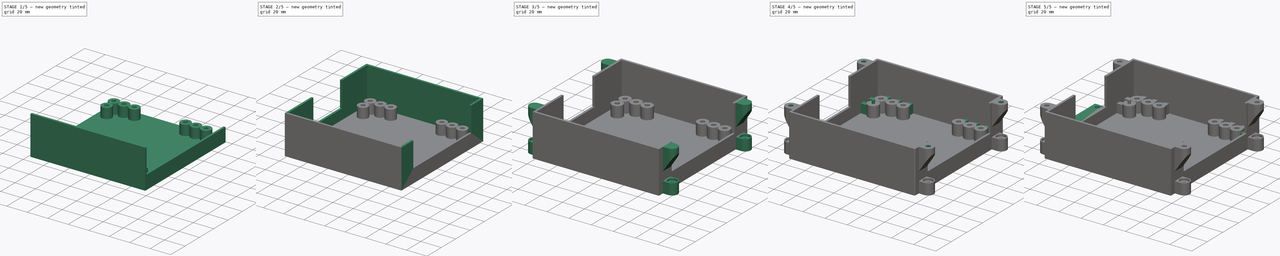
[diagram: build sequence overview — one tinted view per stage of 5, left to right]
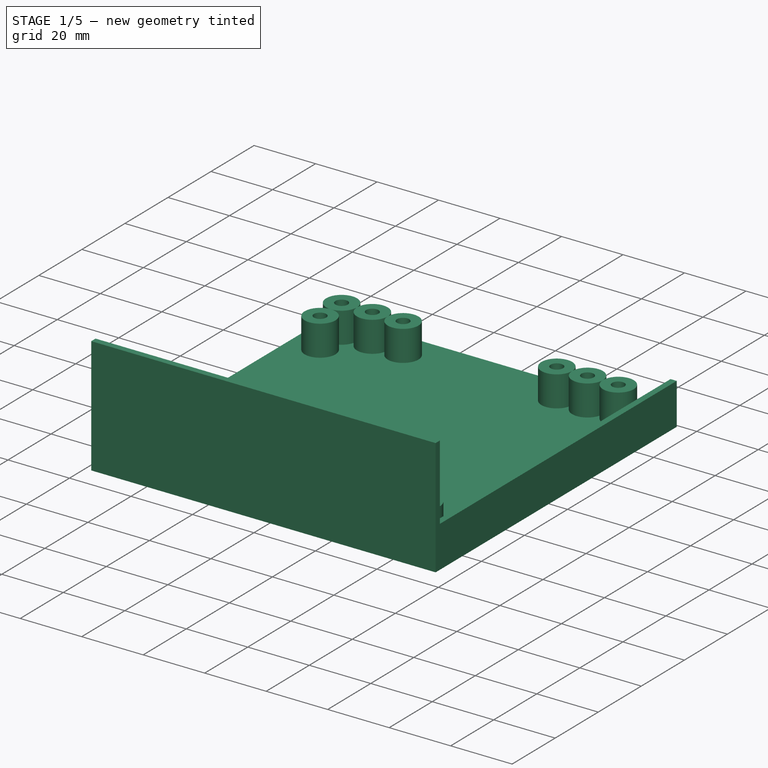
[diagram: stage 1 of 5 — iso view after this stage's code; geometry added in this stage tinted green]
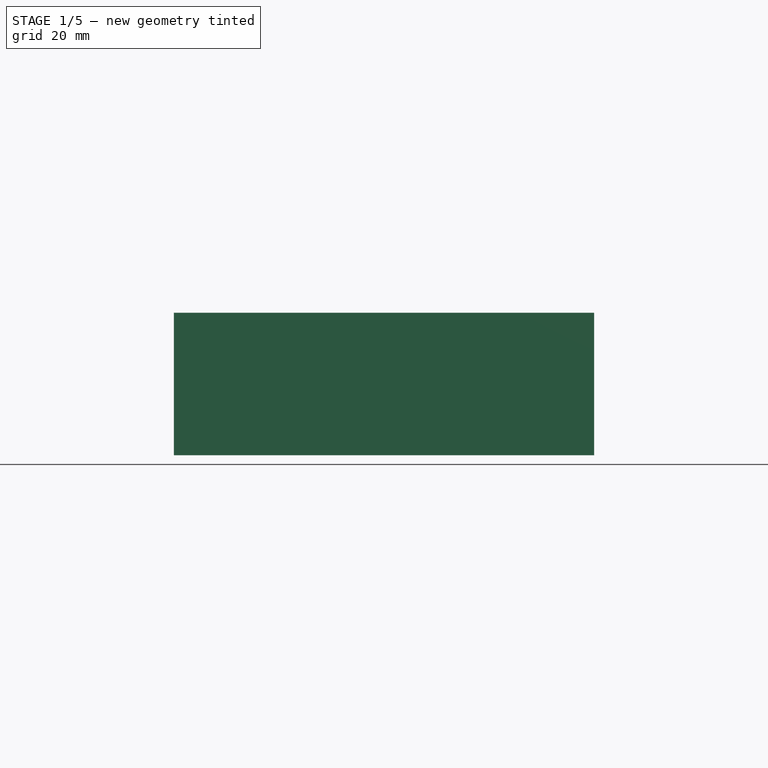
[diagram: stage 1 of 5 — front view after this stage's code; geometry added in this stage tinted green]
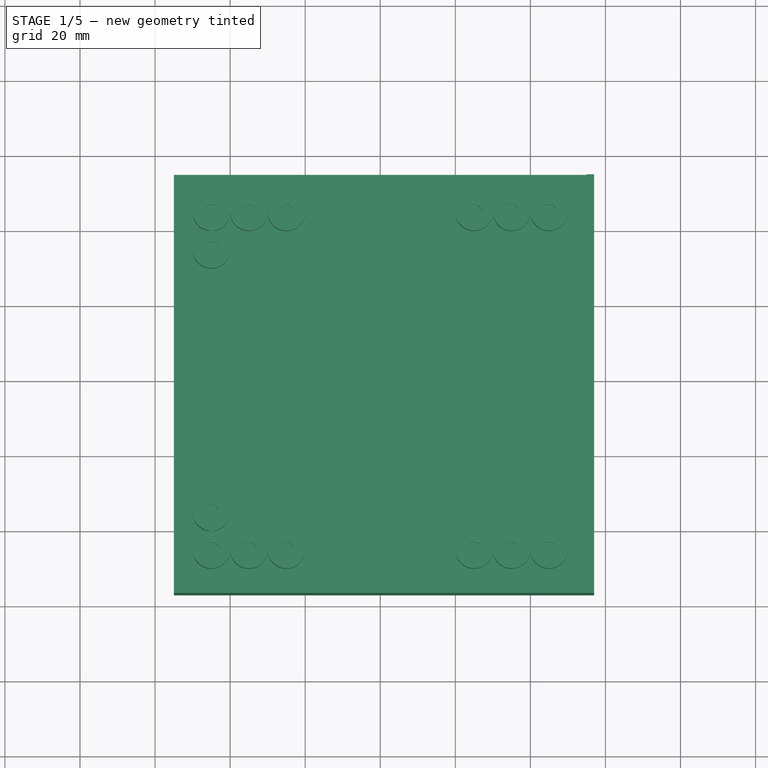
[diagram: stage 1 of 5 — top view after this stage's code; geometry added in this stage tinted green]
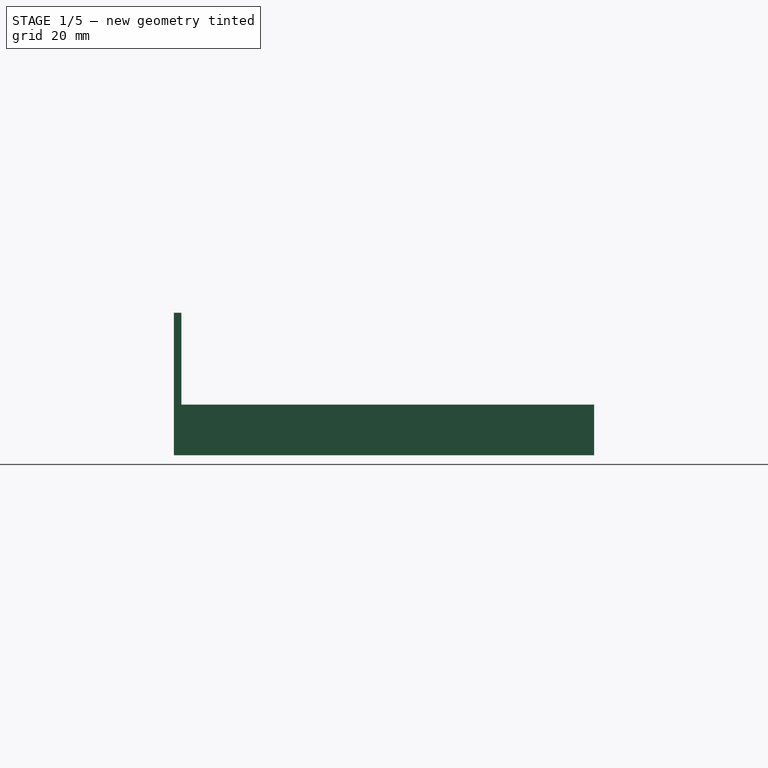
[diagram: stage 1 of 5 — right view after this stage's code; geometry added in this stage tinted green]
FCSTD DOCUMENT  (FreeCAD 1.0R39104 (Git))
Label: Case_1.1
License: All rights reserved
LicenseURL: https://en.wikipedia.org/wiki/All_rights_reserved
objects: Sketcher::SketchObject×24, PartDesign::Pad×17, PartDesign::Hole×4, PartDesign::Pocket×3, PartDesign::Fillet×2, PartDesign::Chamfer×1, PartDesign::Body×1
note: 130 computed .brp shape members not serialized (recipe doc carries the construction recipe); baked Part::Feature solids carry a one-line shape summary decoded from their .brp

FEATURE [Sketcher::SketchObject] Sketch
  ArcFitTolerance = 1e-06
  AttachmentSupport = -> [XY_Plane]
  FullyConstrained = true
  MakeInternals = false
  MapMode = 5
  sketch-geometry (5):
    g0: LineSegment StartX=-55 StartY=55 StartZ=0 EndX=-55 EndY=-55 EndZ=0
    g1: LineSegment StartX=-55 StartY=-55 StartZ=0 EndX=55 EndY=-55 EndZ=0
    g2: LineSegment StartX=55 StartY=-55 StartZ=0 EndX=55 EndY=55 EndZ=0
    g3: LineSegment StartX=55 StartY=55 StartZ=0 EndX=-55 EndY=55 EndZ=0
    g4: GeomPoint [constr] X=0 Y=0 Z=0
  constraints (12):
    c: Coincident(g0,g1)
    c: Coincident(g1,g2)
    c: Coincident(g2,g3)
    c: Coincident(g3,g0)
    c: Vertical(g0)
    c: Vertical(g2)
    c: Horizontal(g1)
    c: Horizontal(g3)
    c: Symmetric(g2,g0,g4)
    c: Coincident(g4,g-1)
    c: DistanceX(g3,g3) = 110
    c: DistanceY(g0,g0) = 110
FEATURE [PartDesign::Pad] Pad
  Direction = (0,0,1)
  Length = 3
  Length2 = 10
  Profile = -> Sketch
  ReferenceAxis = -> Sketch [N_Axis]
  Refine = true
  Suppressed = false
  Type = 0
FEATURE [Sketcher::SketchObject] Sketch001
  ArcFitTolerance = 1e-06
  AttachmentSupport = -> [Pad]
  FullyConstrained = true
  MakeInternals = false
  MapMode = 5
  Placement = pos=(0,0,3) rot=(0,0,1;0rad)
  sketch-geometry (17):
    g0: Circle CenterX=-45 CenterY=45 CenterZ=0 NormalX=0 NormalY=0 NormalZ=1 AngleXU=0 Radius=5
    g1: Circle CenterX=45 CenterY=45 CenterZ=0 NormalX=0 NormalY=0 NormalZ=1 AngleXU=0 Radius=5
    g2: Circle CenterX=45 CenterY=-45 CenterZ=0 NormalX=0 NormalY=0 NormalZ=1 AngleXU=0 Radius=5
    g3: Circle CenterX=-45 CenterY=-45 CenterZ=0 NormalX=0 NormalY=0 NormalZ=1 AngleXU=0 Radius=5
    g4: LineSegment StartX=-45 StartY=45 StartZ=0 EndX=45 EndY=45 EndZ=0
    g5: Circle CenterX=-35 CenterY=45 CenterZ=0 NormalX=0 NormalY=0 NormalZ=1 AngleXU=0 Radius=5
    g6: Circle CenterX=-25 CenterY=45 CenterZ=0 NormalX=0 NormalY=0 NormalZ=1 AngleXU=0 Radius=5
    g7: Circle CenterX=-45 CenterY=35 CenterZ=0 NormalX=0 NormalY=0 NormalZ=1 AngleXU=0 Radius=5
    g8: Circle CenterX=35 CenterY=45 CenterZ=0 NormalX=0 NormalY=0 NormalZ=1 AngleXU=0 Radius=5
    g9: Circle CenterX=25 CenterY=45 CenterZ=0 NormalX=0 NormalY=0 NormalZ=1 AngleXU=0 Radius=5
    g10: LineSegment StartX=-45 StartY=-45 StartZ=0 EndX=45 EndY=-45 EndZ=0
    g11: LineSegment StartX=-45 StartY=45 StartZ=0 EndX=-45 EndY=-45 EndZ=0
    g12: Circle CenterX=-45 CenterY=-35 CenterZ=0 NormalX=0 NormalY=0 NormalZ=1 AngleXU=0 Radius=5
    g13: Circle CenterX=-35 CenterY=-45 CenterZ=0 NormalX=0 NormalY=0 NormalZ=1 AngleXU=0 Radius=5
    g14: Circle CenterX=-25 CenterY=-45 CenterZ=0 NormalX=0 NormalY=0 NormalZ=1 AngleXU=0 Radius=5
    g15: Circle CenterX=35 CenterY=-45 CenterZ=0 NormalX=0 NormalY=0 NormalZ=1 AngleXU=0 Radius=5
    g16: Circle CenterX=25 CenterY=-45 CenterZ=0 NormalX=0 NormalY=0 NormalZ=1 AngleXU=0 Radius=5
  constraints (48):
    c: Distance(g0,g-2) = 45
    c: Distance(g0,g-1) = 45
    c: Diameter(g0) = 10
    c: Diameter(g1) = 10
    c: Diameter(g3) = 10
    c: Diameter(g2) = 10
    c: Distance(g3,g-2) = 45
    c: Distance(g3,g-1) = 45
    c: Distance(g2,g-1) = 45
    c: Distance(g2,g-2) = 45
    c: Distance(g1,g-1) = 45
    c: Distance(g1,g-2) = 45
    c: Coincident(g4,g0)
    c: Coincident(g4,g1)
    c: PointOnObject(g5,g4)
    c: Diameter(g5) = 10
    c: DistanceX(g0,g5) = 10
    c: Diameter(g6) = 10
    c: PointOnObject(g6,g4)
    c: DistanceX(g5,g6) = 10
    c: Distance(g7,g-2) = 45
    c: Diameter(g7) = 10
    c: DistanceY(g7,g0) = 10
    c: Diameter(g8) = 10
    c: PointOnObject(g8,g4)
    c: Diameter(g9) = 10
    c: PointOnObject(g9,g4)
    c: DistanceX(g8,g1) = 10
    c: DistanceX(g9,g8) = 10
    c: Coincident(g10,g3)
    c: Coincident(g10,g2)
    c: Coincident(g11,g0)
    c: Coincident(g11,g3)
    c: PointOnObject(g12,g11)
    c: Diameter(g12) = 10
    c: Distance(g12,g10) = 10
    c: PointOnObject(g13,g10)
    c: PointOnObject(g14,g10)
    c: Diameter(g13) = 10
    c: Diameter(g14) = 10
    c: DistanceX(g3,g13) = 10
    c: DistanceX(g13,g14) = 10
    c: PointOnObject(g15,g10)
    c: Diameter(g15) = 10
    c: PointOnObject(g16,g10)
    c: Diameter(g16) = 10
    c: DistanceX(g15,g2) = 10
    c: DistanceX(g16,g15) = 10
FEATURE [PartDesign::Pad] Pad001
  BaseFeature = -> Pad
  Direction = (0,0,1)
  Length = 10
  Length2 = 10
  Profile = -> Sketch001 [Edge4,Edge13,Edge14,Edge15,Edge17,Edge16,Edge3,Edge2,Edge11,Edge12,Edge9,Edge8,Edge1,Vertex11,Edge10]
  ReferenceAxis = -> Sketch001 [N_Axis]
  Refine = true
  Suppressed = false
  Type = 0
FEATURE [Sketcher::SketchObject] Sketch002
  ArcFitTolerance = 1e-06
  AttachmentSupport = -> [Pad001]
  ExternalGeometry = -> [Pad001]
  FullyConstrained = true
  MakeInternals = false
  MapMode = 5
  Placement = pos=(0,0,13) rot=(0,0,1;0rad)
  sketch-geometry (28):
    g0: GeomPoint X=45 Y=-45 Z=0
    g1: GeomPoint X=35 Y=-45 Z=0
    g2: GeomPoint X=25 Y=-45 Z=0
    g3: GeomPoint X=-25 Y=-45 Z=0
    g4: GeomPoint X=-35 Y=-45 Z=0
    g5: GeomPoint X=-45 Y=-45 Z=0
    g6: GeomPoint X=-45 Y=-35 Z=0
    g7: GeomPoint X=-45 Y=35 Z=0
    g8: GeomPoint X=-45 Y=45 Z=0
    g9: GeomPoint X=-35 Y=45 Z=0
    g10: GeomPoint X=-25 Y=45 Z=0
    g11: GeomPoint X=25 Y=45 Z=0
    g12: GeomPoint X=35 Y=45 Z=0
    g13: GeomPoint X=45 Y=45 Z=0
    g14: Circle CenterX=-45 CenterY=45 CenterZ=0 NormalX=0 NormalY=0 NormalZ=1 AngleXU=0 Radius=2
    g15: Circle CenterX=-35 CenterY=45 CenterZ=0 NormalX=0 NormalY=0 NormalZ=1 AngleXU=0 Radius=2
    g16: Circle CenterX=-25 CenterY=45 CenterZ=0 NormalX=0 NormalY=0 NormalZ=1 AngleXU=0 Radius=2
    g17: Circle CenterX=-45 CenterY=35 CenterZ=0 NormalX=0 NormalY=0 NormalZ=1 AngleXU=0 Radius=2
    g18: Circle CenterX=25 CenterY=45 CenterZ=0 NormalX=0 NormalY=0 NormalZ=1 AngleXU=0 Radius=2
    g19: Circle CenterX=35 CenterY=45 CenterZ=0 NormalX=0 NormalY=0 NormalZ=1 AngleXU=0 Radius=2
    g20: Circle CenterX=45 CenterY=45 CenterZ=0 NormalX=0 NormalY=0 NormalZ=1 AngleXU=0 Radius=2
    g21: Circle CenterX=45 CenterY=-45 CenterZ=0 NormalX=0 NormalY=0 NormalZ=1 AngleXU=0 Radius=2
    g22: Circle CenterX=35 CenterY=-45 CenterZ=0 NormalX=0 NormalY=0 NormalZ=1 AngleXU=0 Radius=2
    g23: Circle CenterX=25 CenterY=-45 CenterZ=0 NormalX=0 NormalY=0 NormalZ=1 AngleXU=0 Radius=2
    g24: Circle CenterX=-45 CenterY=-35 CenterZ=0 NormalX=0 NormalY=0 NormalZ=1 AngleXU=0 Radius=2
    g25: Circle CenterX=-45 CenterY=-45 CenterZ=0 NormalX=0 NormalY=0 NormalZ=1 AngleXU=0 Radius=2
    g26: Circle CenterX=-35 CenterY=-45 CenterZ=0 NormalX=0 NormalY=0 NormalZ=1 AngleXU=0 Radius=2
    g27: Circle CenterX=-25 CenterY=-45 CenterZ=0 NormalX=0 NormalY=0 NormalZ=1 AngleXU=0 Radius=2
  constraints (42):
    c: Coincident(g0,g-19)
    c: Coincident(g1,g-18)
    c: Coincident(g2,g-17)
    c: Coincident(g3,g-21)
    c: Coincident(g4,g-23)
    c: Coincident(g5,g-25)
    c: Coincident(g6,g-27)
    c: Coincident(g7,g-9)
    c: Coincident(g8,g-3)
    c: Coincident(g9,g-7)
    c: Coincident(g10,g-6)
    c: Coincident(g11,g-10)
    c: Coincident(g12,g-13)
    c: Coincident(g13,g-14)
    c: Coincident(g14,g8)
    c: Diameter(g14) = 4
    c: Coincident(g15,g9)
    c: Diameter(g15) = 4
    c: Coincident(g16,g10)
    c: Diameter(g16) = 4
    c: Coincident(g17,g7)
    c: Diameter(g17) = 4
    c: Coincident(g18,g11)
    c: Diameter(g18) = 4
    c: Coincident(g19,g12)
    c: Diameter(g19) = 4
    c: Coincident(g20,g13)
    c: Diameter(g20) = 4
    c: Coincident(g21,g0)
    c: Coincident(g22,g1)
    c: Coincident(g23,g2)
    c: Diameter(g23) = 4
    c: Diameter(g22) = 4
    c: Diameter(g21) = 4
    c: Coincident(g24,g6)
    c: Coincident(g25,g5)
    c: Coincident(g26,g4)
    c: Coincident(g27,g3)
    c: Diameter(g27) = 4
    c: Diameter(g26) = 4
    c: Diameter(g25) = 4
    c: Diameter(g24) = 4
FEATURE [PartDesign::Pocket] Pocket
  BaseFeature = -> Pad001
  Direction = (0,0,-1)
  Length = 4.1
  Length2 = 5
  Profile = -> Sketch002
  ReferenceAxis = -> Sketch002 [N_Axis]
  Refine = true
  Suppressed = false
  Type = 0
FEATURE [Sketcher::SketchObject] Sketch003
  ArcFitTolerance = 1e-06
  AttachmentSupport = -> [Pocket]
  ExternalGeometry = -> [Pocket]
  FullyConstrained = false
  MakeInternals = false
  MapMode = 5
  Placement = pos=(0,0,0) rot=(1,0,0;3.14159rad)
  sketch-geometry (4):
    g0: LineSegment StartX=55 StartY=-55 StartZ=0 EndX=57 EndY=-55 EndZ=0
    g1: LineSegment StartX=57 StartY=-55 StartZ=0 EndX=57 EndY=55 EndZ=0
    g2: LineSegment StartX=55 StartY=55 StartZ=0 EndX=55 EndY=-55 EndZ=0
    g3: LineSegment StartX=55 StartY=55 StartZ=0 EndX=57 EndY=55 EndZ=0
  constraints (10):
    c: DistanceX(g-4,g1) = 2
    c: Coincident(g0,g1)
    c: Coincident(g2,g0)
    c: Horizontal(g0)
    c: Vertical(g1)
    c: Vertical(g2)
    c: Coincident(g0,g-5)
    c: Coincident(g3,g2)
    c: Coincident(g3,g1)
    c: Horizontal(g3)
FEATURE [PartDesign::Pad] Pad002
  BaseFeature = -> Pocket
  Direction = (0,0,-1)
  Length = 13.5
  Length2 = 10
  Profile = -> Sketch003
  ReferenceAxis = -> Sketch003 [N_Axis]
  Refine = true
  Reversed = true
  Suppressed = false
  Type = 0
FEATURE [Sketcher::SketchObject] Sketch004
  ArcFitTolerance = 1e-06
  AttachmentSupport = -> [Pad002]
  ExternalGeometry = -> [Pad002]
  FullyConstrained = true
  MakeInternals = false
  MapMode = 5
  Placement = pos=(0,0,0) rot=(1,0,0;3.14159rad)
  sketch-geometry (4):
    g0: LineSegment StartX=-55 StartY=55 StartZ=0 EndX=57 EndY=55 EndZ=0
    g1: LineSegment StartX=57 StartY=55 StartZ=0 EndX=57 EndY=57 EndZ=0
    g2: LineSegment StartX=57 StartY=57 StartZ=0 EndX=-55 EndY=57 EndZ=0
    g3: LineSegment StartX=-55 StartY=57 StartZ=0 EndX=-55 EndY=55 EndZ=0
  constraints (11):
    c: Coincident(g0,g1)
    c: Coincident(g1,g2)
    c: Coincident(g2,g3)
    c: Coincident(g3,g0)
    c: Horizontal(g0)
    c: Horizontal(g2)
    c: Vertical(g1)
    c: Vertical(g3)
    c: Coincident(g0,g-3)
    c: DistanceX(g2,g2) = 112
    c: DistanceY(g3,g3) = 2
FEATURE [PartDesign::Pad] Pad003
  BaseFeature = -> Pad002
  Direction = (0,0,-1)
  Length = 38
  Length2 = 10
  Profile = -> Sketch004
  ReferenceAxis = -> Sketch004 [N_Axis]
  Refine = true
  Reversed = true
  Suppressed = false
  Type = 0
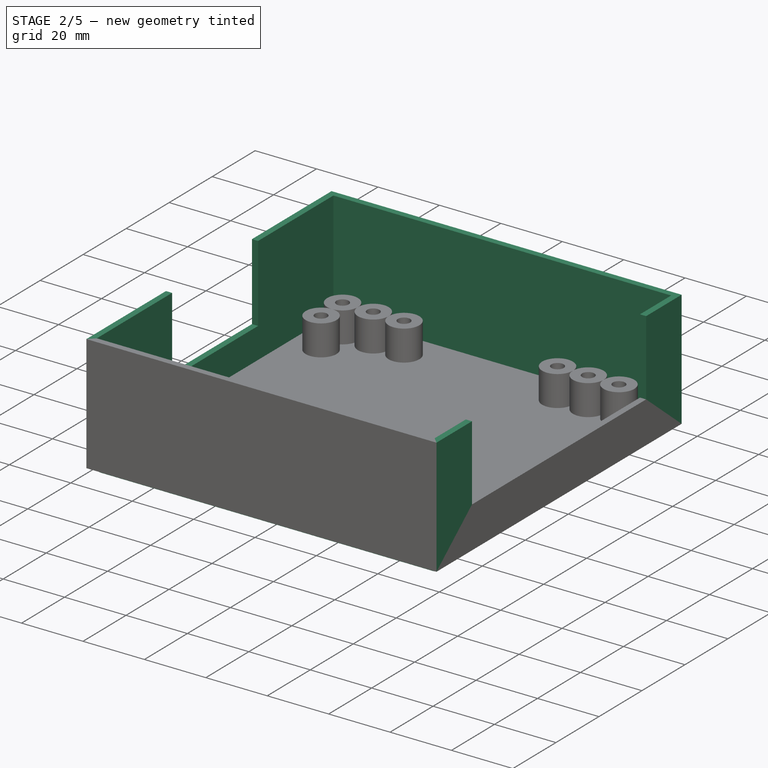
[diagram: stage 2 of 5 — iso view after this stage's code; geometry added in this stage tinted green]
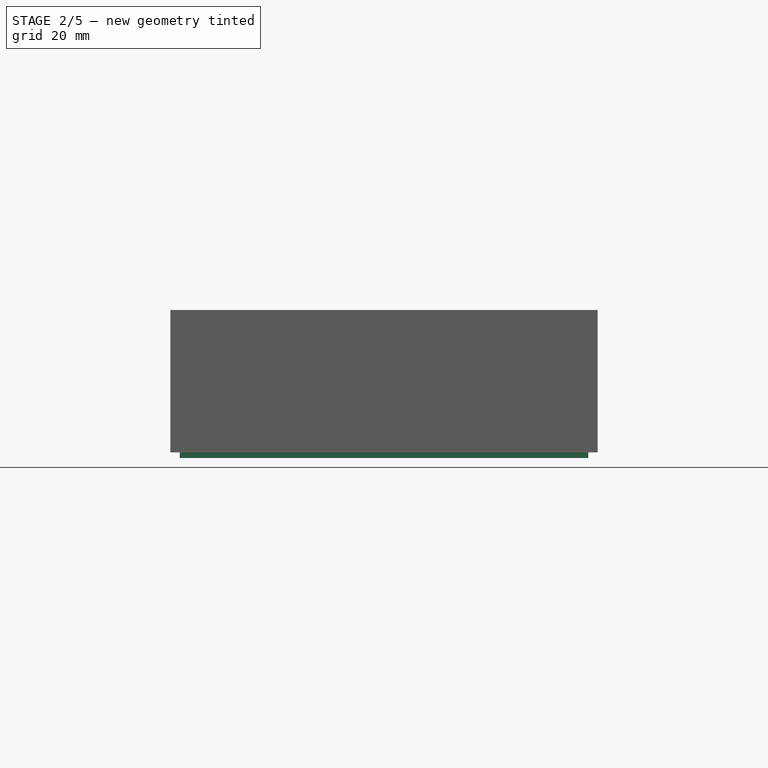
[diagram: stage 2 of 5 — front view after this stage's code; geometry added in this stage tinted green]
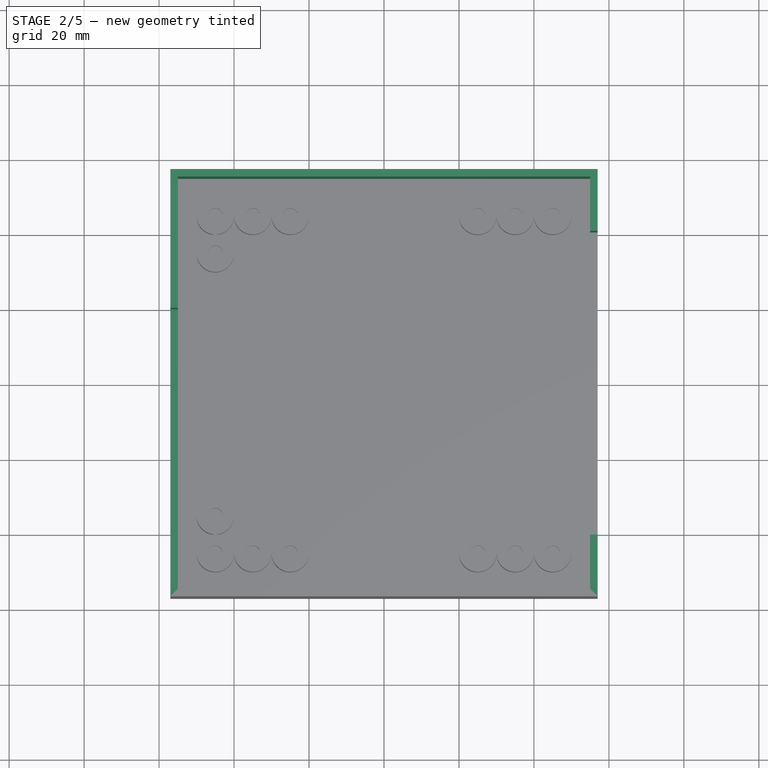
[diagram: stage 2 of 5 — top view after this stage's code; geometry added in this stage tinted green]
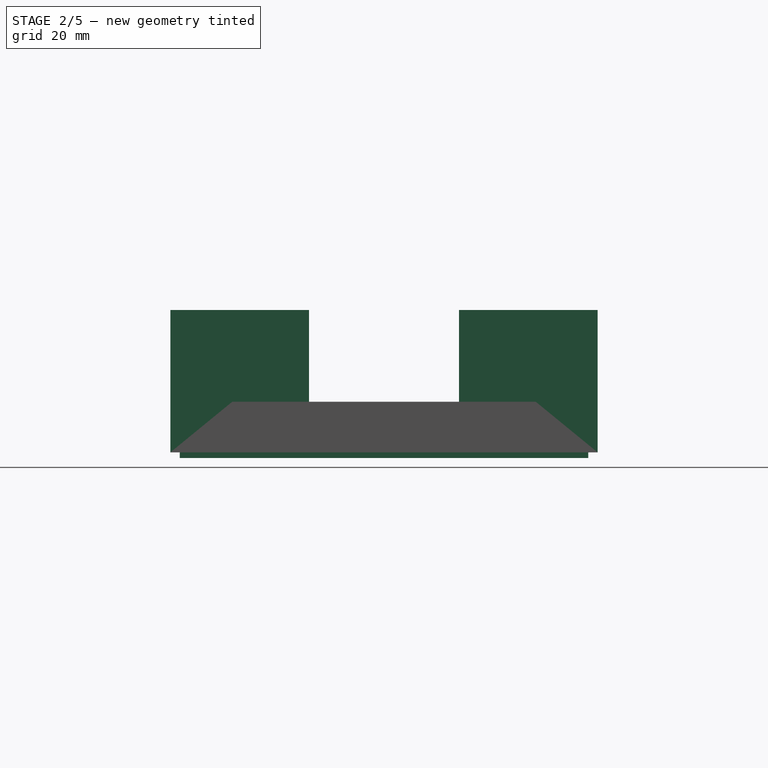
[diagram: stage 2 of 5 — right view after this stage's code; geometry added in this stage tinted green]
FEATURE [Sketcher::SketchObject] Sketch005
  ArcFitTolerance = 1e-06
  AttachmentSupport = -> [Pad003]
  ExternalGeometry = -> [Pad003]
  FullyConstrained = true
  MakeInternals = false
  MapMode = 5
  Placement = pos=(0,0,0) rot=(1,0,0;3.14159rad)
  sketch-geometry (4):
    g0: LineSegment StartX=57 StartY=-55 StartZ=0 EndX=-55 EndY=-55 EndZ=0
    g1: LineSegment StartX=-55 StartY=-55 StartZ=0 EndX=-55 EndY=-57 EndZ=0
    g2: LineSegment StartX=-55 StartY=-57 StartZ=0 EndX=57 EndY=-57 EndZ=0
    g3: LineSegment StartX=57 StartY=-57 StartZ=0 EndX=57 EndY=-55 EndZ=0
  constraints (11):
    c: Coincident(g0,g1)
    c: Coincident(g1,g2)
    c: Coincident(g2,g3)
    c: Coincident(g3,g0)
    c: Horizontal(g0)
    c: Horizontal(g2)
    c: Vertical(g1)
    c: Vertical(g3)
    c: Coincident(g0,g-5)
    c: DistanceX(g2,g2) = 112
    c: DistanceY(g1,g1) = 2
FEATURE [PartDesign::Pad] Pad004
  BaseFeature = -> Pad003
  Direction = (0,0,-1)
  Length = 38
  Length2 = 10
  Profile = -> Sketch005
  ReferenceAxis = -> Sketch005 [N_Axis]
  Refine = true
  Reversed = true
  Suppressed = false
  Type = 0
FEATURE [Sketcher::SketchObject] Sketch006
  ArcFitTolerance = 1e-06
  AttachmentSupport = -> [Pad004]
  ExternalGeometry = -> [Pad004]
  FullyConstrained = true
  MakeInternals = false
  MapMode = 5
  Placement = pos=(0,0,0) rot=(1,0,0;3.14159rad)
  sketch-geometry (5):
    g0: LineSegment StartX=-57 StartY=-57 StartZ=0 EndX=-55 EndY=-57 EndZ=0
    g1: LineSegment StartX=-55 StartY=-57 StartZ=0 EndX=-55 EndY=57 EndZ=0
    g2: LineSegment StartX=-55 StartY=57 StartZ=0 EndX=-57 EndY=57 EndZ=0
    g3: LineSegment StartX=-57 StartY=57 StartZ=0 EndX=-57 EndY=-57 EndZ=0
    g4: GeomPoint [constr] X=-56 Y=0 Z=0
  constraints (12):
    c: Coincident(g0,g1)
    c: Coincident(g1,g2)
    c: Coincident(g2,g3)
    c: Coincident(g3,g0)
    c: Horizontal(g0)
    c: Horizontal(g2)
    c: Vertical(g1)
    c: Vertical(g3)
    c: Symmetric(g2,g0,g4)
    c: PointOnObject(g4,g-1)
    c: Coincident(g1,g-3)
    c: DistanceX(g2,g2) = 2
FEATURE [PartDesign::Pad] Pad005
  BaseFeature = -> Pad004
  Direction = (0,0,-1)
  Length = 38
  Length2 = 10
  Profile = -> Sketch006
  ReferenceAxis = -> Sketch006 [N_Axis]
  Refine = true
  Reversed = true
  Suppressed = false
  Type = 0
FEATURE [Sketcher::SketchObject] Sketch007
  ArcFitTolerance = 1e-06
  AttachmentSupport = -> [Pad005]
  ExternalGeometry = -> [Pad005]
  FullyConstrained = true
  MakeInternals = false
  MapMode = 5
  Placement = pos=(0,0,38) rot=(0,0,1;0rad)
  sketch-geometry (5):
    g0: LineSegment StartX=-55 StartY=20 StartZ=0 EndX=-57 EndY=20 EndZ=0
    g1: LineSegment StartX=-57 StartY=20 StartZ=0 EndX=-57 EndY=-20 EndZ=0
    g2: LineSegment StartX=-57 StartY=-20 StartZ=0 EndX=-55 EndY=-20 EndZ=0
    g3: LineSegment StartX=-55 StartY=-20 StartZ=0 EndX=-55 EndY=20 EndZ=0
    g4: GeomPoint [constr] X=-56 Y=-1e-16 Z=0
  constraints (13):
    c: Coincident(g0,g1)
    c: Coincident(g1,g2)
    c: Coincident(g2,g3)
    c: Coincident(g3,g0)
    c: Horizontal(g0)
    c: Horizontal(g2)
    c: Vertical(g1)
    c: Vertical(g3)
    c: Symmetric(g2,g0,g4)
    c: PointOnObject(g4,g-1)
    c: Distance(g4,g-3) = 1
    c: DistanceX(g2,g2) = 2
    c: DistanceY(g1,g1) = 40
FEATURE [PartDesign::Pocket] Pocket001
  BaseFeature = -> Pad005
  Direction = (0,0,-1)
  Length = 0
  Length2 = 5
  Profile = -> Sketch007
  ReferenceAxis = -> Sketch007 [N_Axis]
  Refine = true
  Suppressed = false
  Type = 3
  UpToFace = -> Pad005 [Face34]
FEATURE [Sketcher::SketchObject] Sketch008
  ArcFitTolerance = 1e-06
  AttachmentSupport = -> [Pocket001]
  ExternalGeometry = -> [Pocket001]
  FullyConstrained = true
  MakeInternals = false
  MapMode = 5
  Placement = pos=(0,0,13.5) rot=(0,0,1;0rad)
  sketch-geometry (8):
    g0: LineSegment StartX=57 StartY=-55 StartZ=0 EndX=57 EndY=-40.5 EndZ=0
    g1: LineSegment StartX=57 StartY=-40.5 StartZ=0 EndX=55 EndY=-40.5 EndZ=0
    g2: LineSegment StartX=55 StartY=-40.5 StartZ=0 EndX=55 EndY=-55 EndZ=0
    g3: LineSegment StartX=55 StartY=-55 StartZ=0 EndX=57 EndY=-55 EndZ=0
    g4: LineSegment StartX=57 StartY=55 StartZ=0 EndX=55 EndY=55 EndZ=0
    g5: LineSegment StartX=55 StartY=55 StartZ=0 EndX=55 EndY=40.5 EndZ=0
    g6: LineSegment StartX=55 StartY=40.5 StartZ=0 EndX=57 EndY=40.5 EndZ=0
    g7: LineSegment StartX=57 StartY=40.5 StartZ=0 EndX=57 EndY=55 EndZ=0
  constraints (22):
    c: Coincident(g0,g1)
    c: Coincident(g1,g2)
    c: Coincident(g2,g3)
    c: Coincident(g3,g0)
    c: Vertical(g0)
    c: Vertical(g2)
    c: Horizontal(g1)
    c: Horizontal(g3)
    c: Coincident(g0,g-3)
    c: PointOnObject(g1,g-4)
    c: Coincident(g4,g5)
    c: Coincident(g5,g6)
    c: Coincident(g6,g7)
    c: Coincident(g7,g4)
    c: Horizontal(g4)
    c: Horizontal(g6)
    c: Vertical(g5)
    c: Vertical(g7)
    c: Coincident(g4,g-3)
    c: PointOnObject(g5,g-4)
    c: Distance(g1,g6) = 81
    c: Equal(g7,g0)
FEATURE [PartDesign::Pad] Pad006
  BaseFeature = -> Pocket001
  Direction = (0,0,1)
  Length = 10
  Length2 = 10
  Profile = -> Sketch008
  ReferenceAxis = -> Sketch008 [N_Axis]
  Refine = true
  Suppressed = false
  Type = 3
  UpToFace = -> Pocket001 [Face4]
FEATURE [Sketcher::SketchObject] Sketch012
  ArcFitTolerance = 1e-06
  AttachmentSupport = -> [Pad006]
  ExternalGeometry = -> [Pad006]
  FullyConstrained = true
  MakeInternals = false
  MapMode = 5
  Placement = pos=(0,0,0) rot=(1,0,0;3.14159rad)
  sketch-geometry (5):
    g0: LineSegment StartX=-54.5 StartY=54.5 StartZ=0 EndX=-54.5 EndY=-54.5 EndZ=0
    g1: LineSegment StartX=-54.5 StartY=-54.5 StartZ=0 EndX=54.5 EndY=-54.5 EndZ=0
    g2: LineSegment StartX=54.5 StartY=-54.5 StartZ=0 EndX=54.5 EndY=54.5 EndZ=0
    g3: LineSegment StartX=54.5 StartY=54.5 StartZ=0 EndX=-54.5 EndY=54.5 EndZ=0
    g4: GeomPoint [constr] X=0 Y=0 Z=0
  constraints (13):
    c: Coincident(g0,g1)
    c: Coincident(g1,g2)
    c: Coincident(g2,g3)
    c: Coincident(g3,g0)
    c: Vertical(g0)
    c: Vertical(g2)
    c: Horizontal(g1)
    c: Horizontal(g3)
    c: Symmetric(g2,g0,g4)
    c: Coincident(g4,g-1)
    c: DistanceX(g-6,g-6) = 110
    c: DistanceX(g3,g3) = 109
    c: DistanceY(g2,g2) = 109
FEATURE [PartDesign::Pad] Pad007
  BaseFeature = -> Pad006
  Direction = (0,0,-1)
  Length = 1.5
  Length2 = 10
  Profile = -> Sketch012 [Edge3,Edge4,Edge2,Edge1]
  ReferenceAxis = -> Sketch012 [N_Axis]
  Refine = true
  Suppressed = false
  Type = 0
FEATURE [Sketcher::SketchObject] Sketch013
  ArcFitTolerance = 1e-06
  AttachmentSupport = -> [Pad007]
  ExternalGeometry = -> [Pad007]
  FullyConstrained = false
  MakeInternals = false
  MapMode = 5
  Placement = pos=(0,0,0) rot=(1,0,0;3.14159rad)
  sketch-geometry (16):
    g0: ArcOfCircle CenterX=62 CenterY=47 CenterZ=0 NormalX=0 NormalY=0 NormalZ=1 AngleXU=0 Radius=5 StartAngle=4.71239 EndAngle=7.85398
    g1: LineSegment StartX=62 StartY=42 StartZ=0 EndX=57 EndY=42 EndZ=0
    g2: LineSegment StartX=62 StartY=52 StartZ=0 EndX=57 EndY=52 EndZ=0
    g3: LineSegment StartX=57 StartY=42 StartZ=0 EndX=57 EndY=52 EndZ=0
    g4: ArcOfCircle CenterX=62 CenterY=-47 CenterZ=0 NormalX=0 NormalY=0 NormalZ=1 AngleXU=0 Radius=5 StartAngle=4.71239 EndAngle=7.85398
    g5: LineSegment StartX=62 StartY=-42 StartZ=0 EndX=57 EndY=-42 EndZ=0
    g6: LineSegment StartX=62 StartY=-52 StartZ=0 EndX=57 EndY=-52 EndZ=0
    g7: LineSegment StartX=57 StartY=-42 StartZ=0 EndX=57 EndY=-52 EndZ=0
    g8: ArcOfCircle CenterX=-62 CenterY=47 CenterZ=0 NormalX=0 NormalY=0 NormalZ=1 AngleXU=0 Radius=5 StartAngle=1.5708 EndAngle=4.71239
    g9: LineSegment StartX=-62 StartY=42 StartZ=0 EndX=-57 EndY=42 EndZ=0
    g10: LineSegment StartX=-62 StartY=52 StartZ=0 EndX=-57 EndY=52 EndZ=0
    g11: LineSegment StartX=-57 StartY=42 StartZ=0 EndX=-57 EndY=52 EndZ=0
    g12: ArcOfCircle CenterX=-62 CenterY=-47 CenterZ=0 NormalX=0 NormalY=0 NormalZ=1 AngleXU=0 Radius=5 StartAngle=1.5708 EndAngle=4.71239
    g13: LineSegment StartX=-62 StartY=-42 StartZ=0 EndX=-57 EndY=-42 EndZ=0
    g14: LineSegment StartX=-62 StartY=-52 StartZ=0 EndX=-57 EndY=-52 EndZ=0
    g15: LineSegment StartX=-57 StartY=-42 StartZ=0 EndX=-57 EndY=-52 EndZ=0
  constraints (37):
    c: Diameter(g0) = 10
    c: Horizontal(g1)
    c: Horizontal(g2)
    c: Equal(g1,g2)
    c: Coincident(g3,g1)
    c: PointOnObject(g3,g2)
    c: Vertical(g3)
    c: Coincident(g0,g1)
    c: Tangent(g0,g2) = -1.5708
    c: DistanceY(g0,g-4) = 10
    c: Diameter(g4) = 10
    c: Horizontal(g5)
    c: Horizontal(g6)
    c: Equal(g5,g6)
    c: Coincident(g7,g5)
    c: PointOnObject(g7,g6)
    c: Vertical(g7)
    c: Coincident(g4,g5)
    c: Tangent(g4,g6) = 1.5708
    c: Diameter(g8) = 10
    c: Horizontal(g9)
    c: Horizontal(g10)
    c: Equal(g9,g10)
    c: Coincident(g11,g9)
    c: PointOnObject(g11,g10)
    c: Vertical(g11)
    c: Coincident(g8,g9)
    c: Tangent(g8,g10) = 1.5708
    c: Diameter(g12) = 10
    c: Horizontal(g13)
    c: Horizontal(g14)
    c: Equal(g13,g14)
    c: Coincident(g15,g13)
    c: PointOnObject(g15,g14)
    c: Vertical(g15)
    c: Coincident(g12,g13)
    c: Tangent(g12,g14) = -1.5708
FEATURE [PartDesign::Pad] Pad008
  BaseFeature = -> Pad007
  Direction = (0,0,-1)
  Length = 10
  Length2 = 10
  Profile = -> Sketch013
  ReferenceAxis = -> Sketch013 [N_Axis]
  Refine = true
  Suppressed = false
  Type = 0
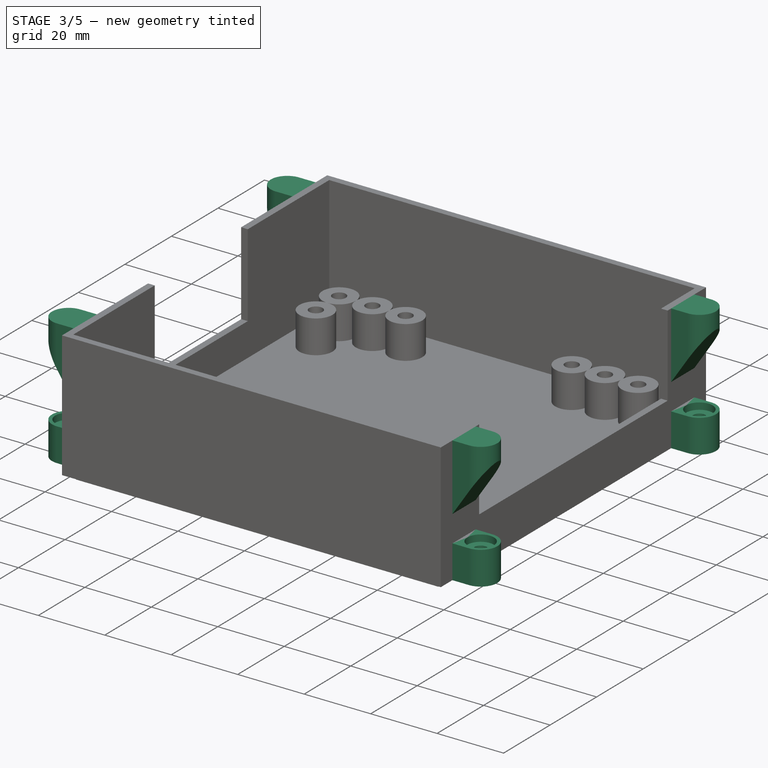
[diagram: stage 3 of 5 — iso view after this stage's code; geometry added in this stage tinted green]
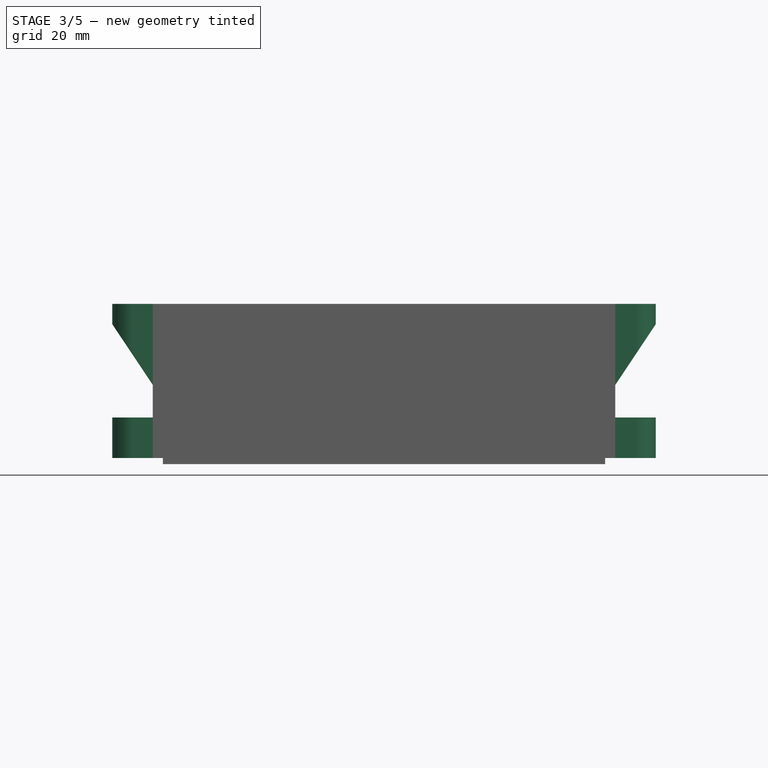
[diagram: stage 3 of 5 — front view after this stage's code; geometry added in this stage tinted green]
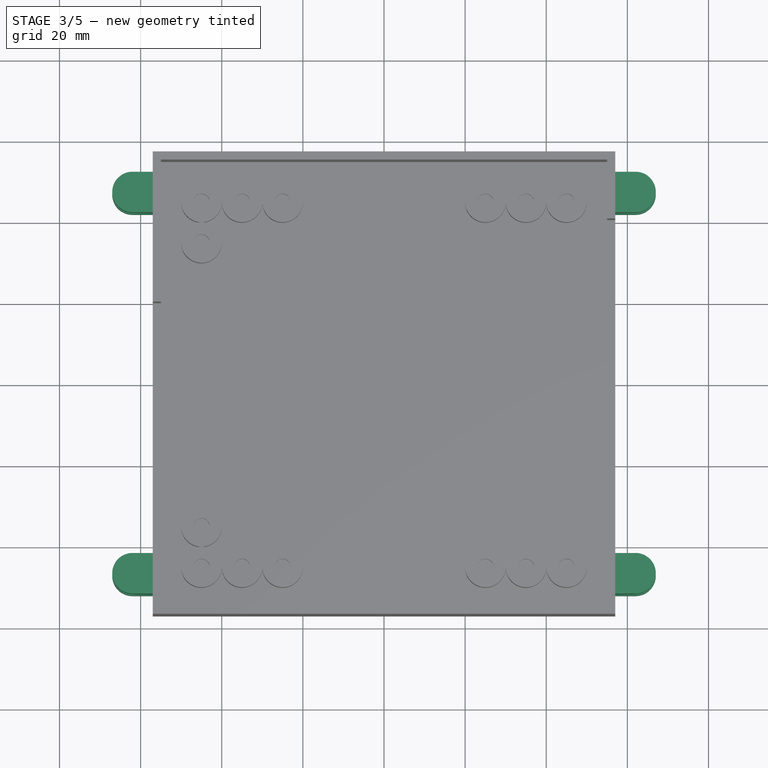
[diagram: stage 3 of 5 — top view after this stage's code; geometry added in this stage tinted green]
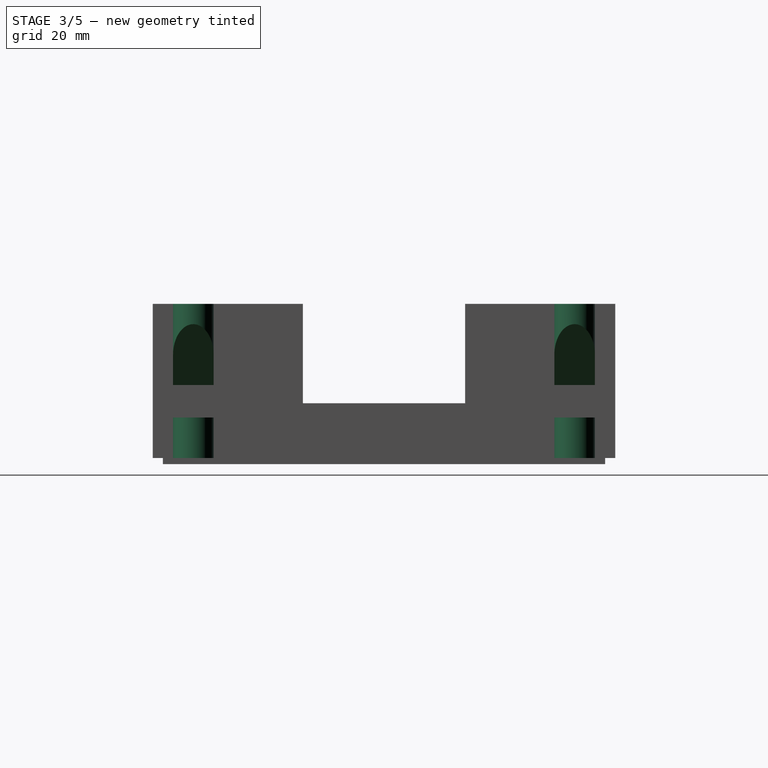
[diagram: stage 3 of 5 — right view after this stage's code; geometry added in this stage tinted green]
FEATURE [PartDesign::Pad] Pad009
  BaseFeature = -> Pad008
  Direction = (0,0,-1)
  Length = 10
  Length2 = 10
  Profile = -> Sketch013
  ReferenceAxis = -> Sketch013 [N_Axis]
  Refine = true
  Reversed = true
  Suppressed = false
  Type = 0
FEATURE [Sketcher::SketchObject] Sketch014
  ArcFitTolerance = 1e-06
  AttachmentSupport = -> [Pad009]
  ExternalGeometry = -> [Pad009]
  FullyConstrained = false
  MakeInternals = false
  MapMode = 5
  Placement = pos=(0,0,0) rot=(1,0,0;3.14159rad)
  sketch-geometry (8):
    g0: GeomPoint X=62 Y=47 Z=0
    g1: Circle CenterX=62 CenterY=47 CenterZ=0 NormalX=0 NormalY=0 NormalZ=1 AngleXU=0 Radius=1.92619
    g2: GeomPoint X=62 Y=-47 Z=0
    g3: Circle CenterX=62 CenterY=-47 CenterZ=0 NormalX=0 NormalY=0 NormalZ=1 AngleXU=0 Radius=1.92619
    g4: GeomPoint X=-62 Y=47 Z=0
    g5: Circle CenterX=-62 CenterY=47 CenterZ=0 NormalX=0 NormalY=0 NormalZ=1 AngleXU=0 Radius=1.92619
    g6: GeomPoint X=-62 Y=-47 Z=0
    g7: Circle CenterX=-62 CenterY=-47 CenterZ=0 NormalX=0 NormalY=0 NormalZ=1 AngleXU=0 Radius=1.92619
  constraints (5):
    c: Coincident(g0,g-3)
    c: Coincident(g1,g0)
    c: Coincident(g3,g2)
    c: Coincident(g5,g4)
    c: Coincident(g7,g6)
FEATURE [PartDesign::Hole] Hole
  BaseFeature = -> Pad009
  CustomThreadClearance = 0
  Depth = 364.12
  DepthType = 1
  Diameter = 3.6
  DrillForDepth = false
  DrillPoint = 1
  DrillPointAngle = 118
  HoleCutCountersinkAngle = 90
  HoleCutCustomValues = false
  HoleCutDepth = 0
  HoleCutDiameter = 6.1
  HoleCutType = 0
  ModelThread = false
  Profile = -> Sketch014
  Refine = true
  Suppressed = false
  Tapered = false
  TaperedAngle = 90
  ThreadClass = 0
  ThreadDepth = 364.12
  ThreadDepthType = 0
  ThreadDirection = 0
  ThreadFit = 0
  ThreadSize = 0
  ThreadType = 0
  Threaded = false
  UseCustomThreadClearance = false
FEATURE [Sketcher::SketchObject] Sketch016
  ArcFitTolerance = 1e-06
  AttachmentSupport = -> [Hole]
  ExternalGeometry = -> [Hole]
  FullyConstrained = false
  MakeInternals = false
  MapMode = 5
  Placement = pos=(0,0,10) rot=(0,0,1;0rad)
  sketch-geometry (4):
    g0: Circle CenterX=-62 CenterY=47 CenterZ=0 NormalX=0 NormalY=0 NormalZ=1 AngleXU=0 Radius=3.10747
    g1: Circle CenterX=62 CenterY=47 CenterZ=0 NormalX=0 NormalY=0 NormalZ=1 AngleXU=0 Radius=2.90018
    g2: Circle CenterX=62 CenterY=-47 CenterZ=0 NormalX=0 NormalY=0 NormalZ=1 AngleXU=0 Radius=2.78812
    g3: Circle CenterX=-62 CenterY=-47 CenterZ=0 NormalX=0 NormalY=0 NormalZ=1 AngleXU=0 Radius=3.05288
  constraints (4):
    c: Coincident(g0,g-3)
    c: Coincident(g1,g-4)
    c: Coincident(g2,g-5)
    c: Coincident(g3,g-6)
FEATURE [PartDesign::Hole] Hole001
  BaseFeature = -> Hole
  CustomThreadClearance = 0
  Depth = 2
  DepthType = 0
  Diameter = 8
  DrillForDepth = false
  DrillPoint = 0
  DrillPointAngle = 118
  HoleCutCountersinkAngle = 90
  HoleCutCustomValues = false
  HoleCutDepth = 0
  HoleCutDiameter = 6.1
  HoleCutType = 0
  ModelThread = false
  Profile = -> Sketch016
  Refine = true
  Suppressed = false
  Tapered = false
  TaperedAngle = 90
  ThreadClass = 0
  ThreadDepth = 2
  ThreadDepthType = 0
  ThreadDirection = 0
  ThreadFit = 0
  ThreadSize = 0
  ThreadType = 0
  Threaded = false
  UseCustomThreadClearance = false
FEATURE [Sketcher::SketchObject] Sketch017
  ArcFitTolerance = 1e-06
  AttachmentSupport = -> [Hole001]
  ExternalGeometry = -> [Hole001]
  FullyConstrained = false
  MakeInternals = false
  MapMode = 5
  Placement = pos=(0,0,38) rot=(0,0,1;0rad)
  sketch-geometry (16):
    g0: ArcOfCircle CenterX=-62 CenterY=47 CenterZ=0 NormalX=0 NormalY=0 NormalZ=1 AngleXU=0 Radius=5 StartAngle=1.5708 EndAngle=4.71239
    g1: LineSegment StartX=-62 StartY=42 StartZ=0 EndX=-57 EndY=42 EndZ=0
    g2: LineSegment StartX=-57 StartY=42 StartZ=0 EndX=-57 EndY=52 EndZ=0
    g3: LineSegment StartX=-57 StartY=52 StartZ=0 EndX=-62 EndY=52 EndZ=0
    g4: ArcOfCircle CenterX=-62 CenterY=-47 CenterZ=0 NormalX=0 NormalY=0 NormalZ=1 AngleXU=0 Radius=5 StartAngle=1.5708 EndAngle=4.71239
    g5: LineSegment StartX=-62 StartY=-42 StartZ=0 EndX=-57 EndY=-42 EndZ=0
    g6: LineSegment StartX=-57 StartY=-42 StartZ=0 EndX=-57 EndY=-52 EndZ=0
    g7: LineSegment StartX=-57 StartY=-52 StartZ=0 EndX=-62 EndY=-52 EndZ=0
    g8: ArcOfCircle CenterX=62 CenterY=47 CenterZ=0 NormalX=0 NormalY=0 NormalZ=1 AngleXU=0 Radius=5 StartAngle=4.71239 EndAngle=7.85398
    g9: LineSegment StartX=62 StartY=42 StartZ=0 EndX=57 EndY=42 EndZ=0
    g10: LineSegment StartX=57 StartY=42 StartZ=0 EndX=57 EndY=52 EndZ=0
    g11: LineSegment StartX=57 StartY=52 StartZ=0 EndX=62 EndY=52 EndZ=0
    g12: ArcOfCircle CenterX=62 CenterY=-47 CenterZ=0 NormalX=0 NormalY=0 NormalZ=1 AngleXU=0 Radius=5 StartAngle=4.71239 EndAngle=7.85398
    g13: LineSegment StartX=62 StartY=-42 StartZ=0 EndX=57 EndY=-42 EndZ=0
    g14: LineSegment StartX=57 StartY=-42 StartZ=0 EndX=57 EndY=-52 EndZ=0
    g15: LineSegment StartX=57 StartY=-52 StartZ=0 EndX=62 EndY=-52 EndZ=0
  constraints (14):
    c: Coincident(g0,g-4)
    c: PointOnObject(g-5,g0)
    c: Coincident(g-5,g1)
    c: Coincident(g1,g-5)
    c: Coincident(g1,g2)
    c: Coincident(g2,g-3)
    c: Coincident(g2,g3)
    c: Coincident(g3,g-4)
    c: Coincident(g5,g6)
    c: Coincident(g6,g7)
    c: Coincident(g9,g10)
    c: Coincident(g10,g11)
    c: Coincident(g13,g14)
    c: Coincident(g14,g15)
FEATURE [PartDesign::Pad] Pad010
  BaseFeature = -> Hole001
  Direction = (0,0,1)
  Length = 20
  Length2 = 10
  Profile = -> Sketch017
  ReferenceAxis = -> Sketch017 [N_Axis]
  Refine = true
  Reversed = true
  Suppressed = false
  Type = 0
FEATURE [Sketcher::SketchObject] Sketch018
  ArcFitTolerance = 1e-06
  AttachmentSupport = -> [Pad010]
  ExternalGeometry = -> [Pad010]
  FullyConstrained = true
  MakeInternals = false
  MapMode = 5
  Placement = pos=(0,52,0) rot=(0,0.707107,0.707107;3.14159rad)
  sketch-geometry (6):
    g0: LineSegment StartX=-67 StartY=18 StartZ=0 EndX=-67 EndY=33 EndZ=0
    g1: LineSegment StartX=-67 StartY=33 StartZ=0 EndX=-57 EndY=18 EndZ=0
    g2: LineSegment StartX=-57 StartY=18 StartZ=0 EndX=-67 EndY=18 EndZ=0
    g3: LineSegment StartX=57 StartY=18 StartZ=0 EndX=67 EndY=18 EndZ=0
    g4: LineSegment StartX=67 StartY=18 StartZ=0 EndX=67 EndY=33 EndZ=0
    g5: LineSegment StartX=67 StartY=33 StartZ=0 EndX=57 EndY=18 EndZ=0
  constraints (14):
    c: Coincident(g-5,g0)
    c: Vertical(g0)
    c: Coincident(g0,g1)
    c: Coincident(g1,g-6)
    c: Coincident(g1,g2)
    c: Coincident(g2,g0)
    c: DistanceY(g0,g0) = 15
    c: Coincident(g-8,g3)
    c: Coincident(g3,g-7)
    c: Coincident(g3,g4)
    c: Vertical(g4)
    c: Coincident(g4,g5)
    c: Coincident(g5,g3)
    c: DistanceY(g4,g4) = 15
FEATURE [PartDesign::Pocket] Pocket002
  BaseFeature = -> Pad010
  Direction = (0,-1,2e-16)
  Length = 5
  Length2 = 5
  Profile = -> Sketch018
  ReferenceAxis = -> Sketch018 [N_Axis]
  Refine = true
  Suppressed = false
  Type = 1
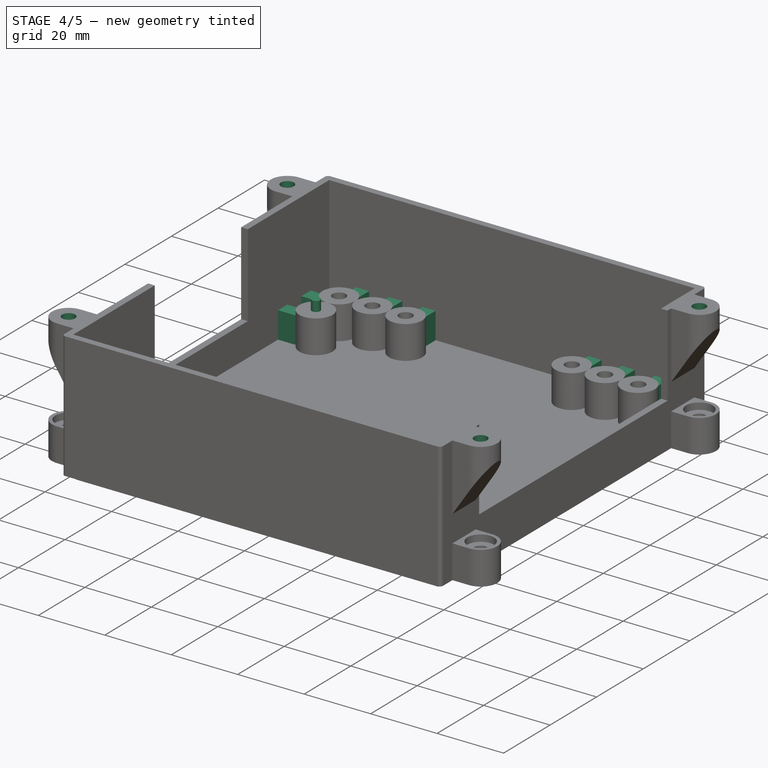
[diagram: stage 4 of 5 — iso view after this stage's code; geometry added in this stage tinted green]
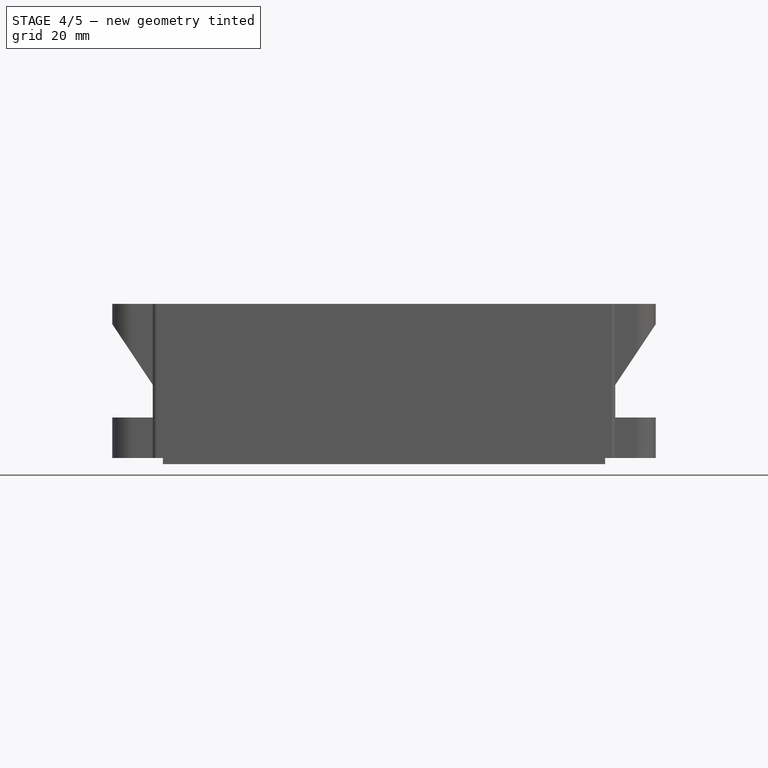
[diagram: stage 4 of 5 — front view after this stage's code; geometry added in this stage tinted green]
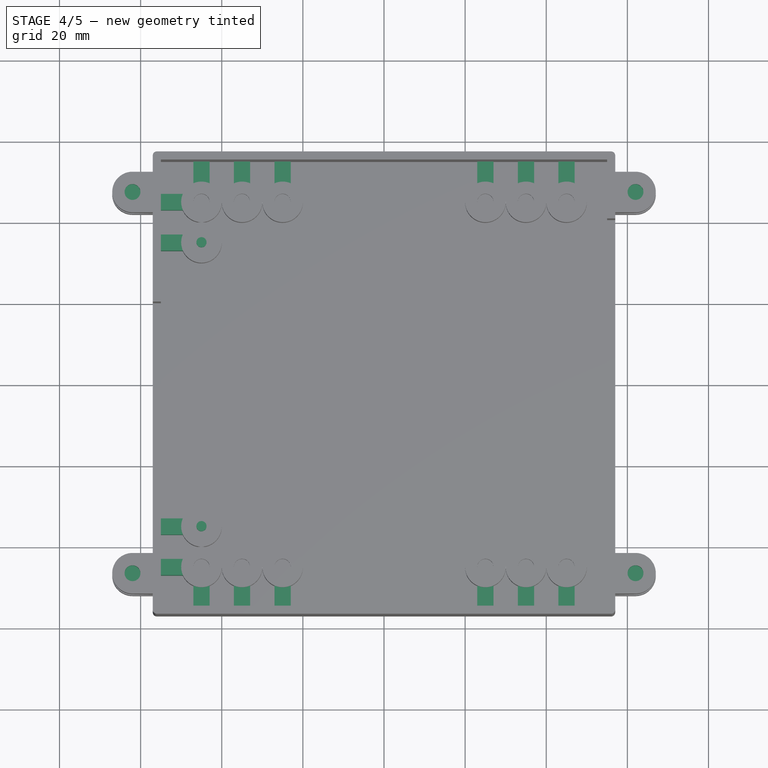
[diagram: stage 4 of 5 — top view after this stage's code; geometry added in this stage tinted green]
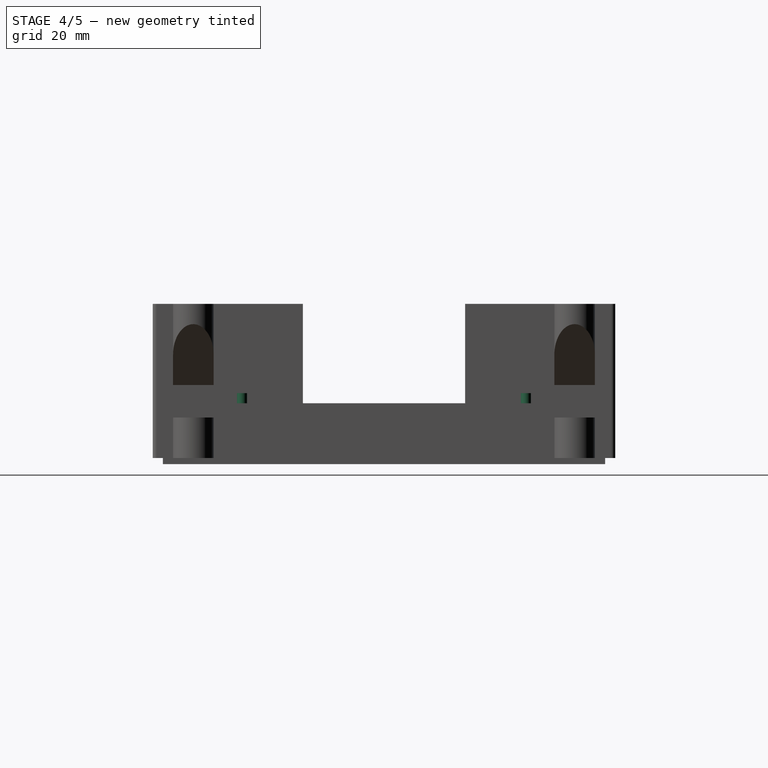
[diagram: stage 4 of 5 — right view after this stage's code; geometry added in this stage tinted green]
FEATURE [Sketcher::SketchObject] Sketch019
  ArcFitTolerance = 1e-06
  AttachmentSupport = -> [Pocket002]
  ExternalGeometry = -> [Pocket002]
  FullyConstrained = false
  MakeInternals = false
  MapMode = 5
  Placement = pos=(0,0,38) rot=(0,0,1;0rad)
  sketch-geometry (4):
    g0: Circle CenterX=62 CenterY=47 CenterZ=0 NormalX=0 NormalY=0 NormalZ=1 AngleXU=0 Radius=2.37875
    g1: Circle CenterX=62 CenterY=-47 CenterZ=0 NormalX=0 NormalY=0 NormalZ=1 AngleXU=0 Radius=1.91187
    g2: Circle CenterX=-62 CenterY=-47 CenterZ=0 NormalX=0 NormalY=0 NormalZ=1 AngleXU=0 Radius=2.51241
    g3: Circle CenterX=-62 CenterY=47 CenterZ=0 NormalX=0 NormalY=0 NormalZ=1 AngleXU=0 Radius=2.1092
  constraints (4):
    c: Coincident(g0,g-3)
    c: Coincident(g1,g-4)
    c: Coincident(g2,g-5)
    c: Coincident(g3,g-6)
FEATURE [PartDesign::Hole] Hole002
  BaseFeature = -> Pocket002
  CustomThreadClearance = 0
  Depth = 4
  DepthType = 0
  Diameter = 3.9
  DrillForDepth = false
  DrillPoint = 0
  DrillPointAngle = 118
  HoleCutCountersinkAngle = 90
  HoleCutCustomValues = false
  HoleCutDepth = 0
  HoleCutDiameter = 6.1
  HoleCutType = 0
  ModelThread = false
  Profile = -> Sketch019
  Refine = true
  Suppressed = false
  Tapered = false
  TaperedAngle = 90
  ThreadClass = 0
  ThreadDepth = 4
  ThreadDepthType = 0
  ThreadDirection = 0
  ThreadFit = 0
  ThreadSize = 0
  ThreadType = 0
  Threaded = false
  UseCustomThreadClearance = false
FEATURE [PartDesign::Fillet] Fillet001
  Base = -> Hole002 [Edge31,Edge29,Edge32,Edge65]
  BaseFeature = -> Hole002
  Radius = 1
  Refine = true
  SupportTransform = false
  Suppressed = false
  UseAllEdges = false
FEATURE [Sketcher::SketchObject] Sketch020
  ArcFitTolerance = 1e-06
  AttachmentSupport = -> [Fillet001]
  ExternalGeometry = -> [Fillet001]
  FullyConstrained = true
  MakeInternals = false
  MapMode = 5
  Placement = pos=(0,0,8.9) rot=(0,0,1;0rad)
  sketch-geometry (2):
    g0: Circle CenterX=-45 CenterY=-35 CenterZ=0 NormalX=0 NormalY=0 NormalZ=1 AngleXU=0 Radius=2
    g1: Circle CenterX=-45 CenterY=35 CenterZ=0 NormalX=0 NormalY=0 NormalZ=1 AngleXU=0 Radius=2
  constraints (4):
    c: Coincident(g0,g-3)
    c: Equal(g0,g-3)
    c: Coincident(g1,g-5)
    c: PointOnObject(g-4,g1)
FEATURE [PartDesign::Pad] Pad011
  BaseFeature = -> Fillet001
  Direction = (0,0,1)
  Length = 4.1
  Length2 = 10
  Offset = 4.1
  Profile = -> Sketch020
  ReferenceAxis = -> Sketch020 [N_Axis]
  Refine = true
  Suppressed = false
  Type = 0
FEATURE [Sketcher::SketchObject] Sketch021
  ArcFitTolerance = 1e-06
  AttachmentSupport = -> [Pad011]
  ExternalGeometry = -> [Pad011]
  FullyConstrained = true
  MakeInternals = false
  MapMode = 5
  Placement = pos=(0,0,13) rot=(0,0,1;0rad)
  sketch-geometry (2):
    g0: Circle CenterX=-45 CenterY=-35 CenterZ=0 NormalX=0 NormalY=0 NormalZ=1 AngleXU=0 Radius=1.25
    g1: Circle CenterX=-45 CenterY=35 CenterZ=0 NormalX=0 NormalY=0 NormalZ=1 AngleXU=0 Radius=1.25
  constraints (4):
    c: Coincident(g0,g-4)
    c: Diameter(g0) = 2.5
    c: Coincident(g1,g-3)
    c: Diameter(g1) = 2.5
FEATURE [PartDesign::Pad] Pad012
  BaseFeature = -> Pad011
  Direction = (0,0,1)
  Length = 3
  Length2 = 10
  Profile = -> Sketch021
  ReferenceAxis = -> Sketch021 [N_Axis]
  Refine = true
  Suppressed = false
  Type = 0
FEATURE [Sketcher::SketchObject] Sketch022
  ArcFitTolerance = 1e-06
  AttachmentSupport = -> [Pad012]
  ExternalGeometry = -> [Pad012]
  FullyConstrained = false
  MakeInternals = false
  MapMode = 5
  Placement = pos=(0,0,3) rot=(0,0,1;0rad)
  sketch-geometry (48):
    g0: LineSegment StartX=23 StartY=55 StartZ=0 EndX=23 EndY=49.5826 EndZ=0
    g1: LineSegment StartX=27 StartY=49.5826 StartZ=0 EndX=27 EndY=55 EndZ=0
    g2: LineSegment StartX=27 StartY=55 StartZ=0 EndX=23 EndY=55 EndZ=0
    g3: ArcOfCircle CenterX=25 CenterY=45 CenterZ=0 NormalX=0 NormalY=0 NormalZ=1 AngleXU=0 Radius=5 StartAngle=1.15928 EndAngle=1.98231
    g4: LineSegment StartX=33 StartY=55 StartZ=0 EndX=33 EndY=49.5826 EndZ=0
    g5: LineSegment StartX=37 StartY=49.5826 StartZ=0 EndX=37 EndY=55 EndZ=0
    g6: LineSegment StartX=37 StartY=55 StartZ=0 EndX=33 EndY=55 EndZ=0
    g7: ArcOfCircle CenterX=35 CenterY=45 CenterZ=0 NormalX=0 NormalY=0 NormalZ=1 AngleXU=0 Radius=5 StartAngle=1.15928 EndAngle=1.98231
    g8: LineSegment StartX=43 StartY=55 StartZ=0 EndX=43 EndY=49.5826 EndZ=0
    g9: LineSegment StartX=47 StartY=49.5826 StartZ=0 EndX=47 EndY=55 EndZ=0
    g10: LineSegment StartX=47 StartY=55 StartZ=0 EndX=43 EndY=55 EndZ=0
    g11: ArcOfCircle CenterX=45 CenterY=45 CenterZ=0 NormalX=0 NormalY=0 NormalZ=1 AngleXU=0 Radius=5 StartAngle=1.15928 EndAngle=1.98231
    g12: LineSegment StartX=23 StartY=-55 StartZ=0 EndX=23 EndY=-49.5826 EndZ=0
    g13: LineSegment StartX=27 StartY=-49.5826 StartZ=0 EndX=27 EndY=-55 EndZ=0
    g14: LineSegment StartX=27 StartY=-55 StartZ=0 EndX=23 EndY=-55 EndZ=0
    g15: ArcOfCircle CenterX=25 CenterY=-45 CenterZ=0 NormalX=0 NormalY=0 NormalZ=1 AngleXU=0 Radius=5 StartAngle=4.30087 EndAngle=5.12391
    g16: LineSegment StartX=33 StartY=-55 StartZ=0 EndX=33 EndY=-49.5826 EndZ=0
    g17: LineSegment StartX=37 StartY=-49.5826 StartZ=0 EndX=37 EndY=-55 EndZ=0
    g18: LineSegment StartX=37 StartY=-55 StartZ=0 EndX=33 EndY=-55 EndZ=0
    g19: ArcOfCircle CenterX=35 CenterY=-45 CenterZ=0 NormalX=0 NormalY=0 NormalZ=1 AngleXU=0 Radius=5 StartAngle=4.30087 EndAngle=5.12391
    g20: LineSegment StartX=43 StartY=-55 StartZ=0 EndX=43 EndY=-49.5826 EndZ=0
    g21: LineSegment StartX=47 StartY=-49.5826 StartZ=0 EndX=47 EndY=-55 EndZ=0
    g22: LineSegment StartX=47 StartY=-55 StartZ=0 EndX=43 EndY=-55 EndZ=0
    g23: ArcOfCircle CenterX=45 CenterY=-45 CenterZ=0 NormalX=0 NormalY=0 NormalZ=1 AngleXU=0 Radius=5 StartAngle=4.30087 EndAngle=5.12391
    g24: LineSegment StartX=-47 StartY=-55 StartZ=0 EndX=-47 EndY=-49.5826 EndZ=0
    g25: LineSegment StartX=-43 StartY=-49.5826 StartZ=0 EndX=-43 EndY=-55 EndZ=0
    g26: LineSegment StartX=-43 StartY=-55 StartZ=0 EndX=-47 EndY=-55 EndZ=0
    g27: ArcOfCircle CenterX=-45 CenterY=-45 CenterZ=0 NormalX=0 NormalY=0 NormalZ=1 AngleXU=0 Radius=5 StartAngle=4.30087 EndAngle=5.12391
    g28: LineSegment StartX=-37 StartY=-55 StartZ=0 EndX=-37 EndY=-49.5826 EndZ=0
    g29: LineSegment StartX=-33 StartY=-49.5826 StartZ=0 EndX=-33 EndY=-55 EndZ=0
    g30: LineSegment StartX=-33 StartY=-55 StartZ=0 EndX=-37 EndY=-55 EndZ=0
    g31: ArcOfCircle CenterX=-35 CenterY=-45 CenterZ=0 NormalX=0 NormalY=0 NormalZ=1 AngleXU=0 Radius=5 StartAngle=4.30087 EndAngle=5.12391
    g32: LineSegment StartX=-27 StartY=-55 StartZ=0 EndX=-27 EndY=-49.5826 EndZ=0
    g33: LineSegment StartX=-23 StartY=-49.5826 StartZ=0 EndX=-23 EndY=-55 EndZ=0
    g34: LineSegment StartX=-23 StartY=-55 StartZ=0 EndX=-27 EndY=-55 EndZ=0
    g35: ArcOfCircle CenterX=-25 CenterY=-45 CenterZ=0 NormalX=0 NormalY=0 NormalZ=1 AngleXU=0 Radius=5 StartAngle=4.30087 EndAngle=5.12391
    g36: LineSegment StartX=-47 StartY=55 StartZ=0 EndX=-47 EndY=49.5826 EndZ=0
    g37: LineSegment StartX=-43 StartY=49.5826 StartZ=0 EndX=-43 EndY=55 EndZ=0
    g38: LineSegment StartX=-43 StartY=55 StartZ=0 EndX=-47 EndY=55 EndZ=0
    g39: ArcOfCircle CenterX=-45 CenterY=45 CenterZ=0 NormalX=0 NormalY=0 NormalZ=1 AngleXU=0 Radius=5 StartAngle=1.15928 EndAngle=1.98231
    g40: LineSegment StartX=-37 StartY=55 StartZ=0 EndX=-37 EndY=49.5826 EndZ=0
    g41: LineSegment StartX=-33 StartY=49.5826 StartZ=0 EndX=-33 EndY=55 EndZ=0
    g42: LineSegment StartX=-33 StartY=55 StartZ=0 EndX=-37 EndY=55 EndZ=0
    g43: ArcOfCircle CenterX=-35 CenterY=45 CenterZ=0 NormalX=0 NormalY=0 NormalZ=1 AngleXU=0 Radius=5 StartAngle=1.15928 EndAngle=1.98231
    g44: LineSegment StartX=-27 StartY=55 StartZ=0 EndX=-27 EndY=49.5826 EndZ=0
    g45: LineSegment StartX=-23 StartY=49.5826 StartZ=0 EndX=-23 EndY=55 EndZ=0
    g46: LineSegment StartX=-23 StartY=55 StartZ=0 EndX=-27 EndY=55 EndZ=0
    g47: ArcOfCircle CenterX=-25 CenterY=45 CenterZ=0 NormalX=0 NormalY=0 NormalZ=1 AngleXU=0 Radius=5 StartAngle=1.15928 EndAngle=1.98231
  constraints (86):
    c: Coincident(g1,g2)
    c: Coincident(g2,g0)
    c: Vertical(g0)
    c: Vertical(g1)
    c: Horizontal(g2)
    c: PointOnObject(g0,g-6)
    c: Coincident(g0,g3)
    c: Coincident(g1,g3)
    c: Coincident(g5,g6)
    c: Coincident(g9,g10)
    c: Coincident(g6,g4)
    c: Coincident(g10,g8)
    c: Vertical(g4)
    c: Vertical(g8)
    c: Vertical(g5)
    c: Vertical(g9)
    c: Horizontal(g6)
    c: Horizontal(g10)
    c: Coincident(g4,g7)
    c: Coincident(g8,g11)
    c: Coincident(g5,g7)
    c: Coincident(g9,g11)
    c: Coincident(g13,g14)
    c: Coincident(g14,g12)
    c: Vertical(g12)
    c: Vertical(g13)
    c: Horizontal(g14)
    c: Coincident(g12,g15)
    c: Coincident(g13,g15)
    c: Coincident(g17,g18)
    c: Coincident(g21,g22)
    c: Coincident(g18,g16)
    c: Coincident(g22,g20)
    c: Vertical(g16)
    c: Vertical(g20)
    c: Vertical(g17)
    c: Vertical(g21)
    c: Horizontal(g18)
    c: Horizontal(g22)
    c: Coincident(g16,g19)
    c: Coincident(g20,g23)
    c: Coincident(g17,g19)
    c: Coincident(g21,g23)
    c: DistanceX(g-10,g15) = 70
    c: Coincident(g25,g26)
    c: Coincident(g26,g24)
    c: Vertical(g24)
    c: Vertical(g25)
    c: Horizontal(g26)
    c: Coincident(g24,g27)
    c: Coincident(g25,g27)
    c: Coincident(g29,g30)
    c: Coincident(g33,g34)
    c: Coincident(g30,g28)
    c: Coincident(g34,g32)
    c: Vertical(g28)
    c: Vertical(g32)
    c: Vertical(g29)
    c: Vertical(g33)
    c: Horizontal(g30)
    c: Horizontal(g34)
    c: Coincident(g28,g31)
    c: Coincident(g32,g35)
    c: Coincident(g29,g31)
    c: Coincident(g33,g35)
    c: Coincident(g37,g38)
    c: Coincident(g38,g36)
    c: Vertical(g36)
    c: Vertical(g37)
    c: Horizontal(g38)
    c: Coincident(g36,g39)
    c: Coincident(g37,g39)
    c: Coincident(g41,g42)
    c: Coincident(g45,g46)
    c: Coincident(g42,g40)
    c: Coincident(g46,g44)
    c: Vertical(g40)
    c: Vertical(g44)
    c: Vertical(g41)
    c: Vertical(g45)
    c: Horizontal(g42)
    c: Horizontal(g46)
    c: Coincident(g40,g43)
    c: Coincident(g44,g47)
    c: Coincident(g41,g43)
    c: Coincident(g45,g47)
FEATURE [PartDesign::Pad] Pad013
  BaseFeature = -> Pad012
  Direction = (0,0,1)
  Length = 8
  Length2 = 10
  Profile = -> Sketch022
  ReferenceAxis = -> Sketch022 [N_Axis]
  Refine = true
  Suppressed = false
  Type = 0
FEATURE [Sketcher::SketchObject] Sketch023
  ArcFitTolerance = 1e-06
  AttachmentSupport = -> [Pad013]
  ExternalGeometry = -> [Pad013]
  FullyConstrained = false
  MakeInternals = false
  MapMode = 5
  Placement = pos=(0,0,3) rot=(0,0,1;0rad)
  sketch-geometry (28):
    g0: LineSegment [constr] StartX=-45 StartY=45 StartZ=0 EndX=-55 EndY=45 EndZ=0
    g1: LineSegment [constr] StartX=-45 StartY=43 StartZ=0 EndX=-45 EndY=47 EndZ=0
    g2: LineSegment [constr] StartX=-45 StartY=47 StartZ=0 EndX=-55 EndY=47 EndZ=0
    g3: LineSegment [constr] StartX=-55 StartY=47 StartZ=0 EndX=-55 EndY=43 EndZ=0
    g4: LineSegment [constr] StartX=-55 StartY=43 StartZ=0 EndX=-45 EndY=43 EndZ=0
    g5: LineSegment [constr] StartX=-55 StartY=43 StartZ=0 EndX=-55 EndY=47 EndZ=0
    g6: LineSegment StartX=-55 StartY=47 StartZ=0 EndX=-55 EndY=43 EndZ=0
    g7: LineSegment StartX=-55 StartY=43 StartZ=0 EndX=-48.5 EndY=43 EndZ=0
    g8: LineSegment StartX=-48.5 StartY=43 StartZ=0 EndX=-48.5 EndY=47 EndZ=0
    g9: LineSegment StartX=-48.5 StartY=47 StartZ=0 EndX=-55 EndY=47 EndZ=0
    g10: LineSegment [constr] StartX=-55 StartY=37 StartZ=0 EndX=-55 EndY=33 EndZ=0
    g11: LineSegment [constr] StartX=-55 StartY=33 StartZ=0 EndX=-55 EndY=37 EndZ=0
    g12: LineSegment StartX=-55 StartY=37 StartZ=0 EndX=-55 EndY=33 EndZ=0
    g13: LineSegment StartX=-55 StartY=33 StartZ=0 EndX=-48.5 EndY=33 EndZ=0
    g14: LineSegment StartX=-48.5 StartY=33 StartZ=0 EndX=-48.5 EndY=37 EndZ=0
    g15: LineSegment StartX=-48.5 StartY=37 StartZ=0 EndX=-55 EndY=37 EndZ=0
    g16: LineSegment [constr] StartX=-55 StartY=-33 StartZ=0 EndX=-55 EndY=-37 EndZ=0
    g17: LineSegment [constr] StartX=-55 StartY=-37 StartZ=0 EndX=-55 EndY=-33 EndZ=0
    g18: LineSegment StartX=-55 StartY=-33 StartZ=0 EndX=-55 EndY=-37 EndZ=0
    g19: LineSegment StartX=-55 StartY=-37 StartZ=0 EndX=-48.5 EndY=-37 EndZ=0
    g20: LineSegment StartX=-48.5 StartY=-37 StartZ=0 EndX=-48.5 EndY=-33 EndZ=0
    g21: LineSegment StartX=-48.5 StartY=-33 StartZ=0 EndX=-55 EndY=-33 EndZ=0
    g22: LineSegment [constr] StartX=-55 StartY=-43 StartZ=0 EndX=-55 EndY=-47 EndZ=0
    g23: LineSegment [constr] StartX=-55 StartY=-47 StartZ=0 EndX=-55 EndY=-43 EndZ=0
    g24: LineSegment StartX=-55 StartY=-43 StartZ=0 EndX=-55 EndY=-47 EndZ=0
    g25: LineSegment StartX=-55 StartY=-47 StartZ=0 EndX=-48.5 EndY=-47 EndZ=0
    g26: LineSegment StartX=-48.5 StartY=-47 StartZ=0 EndX=-48.5 EndY=-43 EndZ=0
    g27: LineSegment StartX=-48.5 StartY=-43 StartZ=0 EndX=-55 EndY=-43 EndZ=0
  constraints (68):
    c: DistanceY(g-5,g-4) = 80
    c: Coincident(g0,g-9)
    c: PointOnObject(g0,g-8)
    c: Horizontal(g0)
    c: Coincident(g1,g2)
    c: Coincident(g2,g3)
    c: Coincident(g3,g4)
    c: Coincident(g4,g1)
    c: Vertical(g1)
    c: Vertical(g3)
    c: Horizontal(g2)
    c: Horizontal(g4)
    c: PointOnObject(g1,g-9)
    c: PointOnObject(g0,g1)
    c: PointOnObject(g1,g-9)
    c: PointOnObject(g3,g-8)
    c: Coincident(g3,g5)
    c: Coincident(g6,g7)
    c: Coincident(g7,g8)
    c: Coincident(g8,g9)
    c: Coincident(g9,g6)
    c: Vertical(g6)
    c: Vertical(g8)
    c: Horizontal(g7)
    c: Horizontal(g9)
    c: Coincident(g6,g5)
    c: PointOnObject(g7,g4)
    c: DistanceX(g9,g9) = 6.5
    c: DistanceY(g6,g6) = 4
    c: Vertical(g10)
    c: Coincident(g10,g11)
    c: Coincident(g12,g13)
    c: Coincident(g13,g14)
    c: Coincident(g14,g15)
    c: Coincident(g15,g12)
    c: Vertical(g12)
    c: Vertical(g14)
    c: Horizontal(g13)
    c: Horizontal(g15)
    c: Coincident(g12,g11)
    c: DistanceX(g15,g15) = 6.5
    c: DistanceY(g12,g12) = 4
    c: Vertical(g16)
    c: Coincident(g16,g17)
    c: Coincident(g18,g19)
    c: Coincident(g19,g20)
    c: Coincident(g20,g21)
    c: Coincident(g21,g18)
    c: Vertical(g18)
    c: Vertical(g20)
    c: Horizontal(g19)
    c: Horizontal(g21)
    c: Coincident(g18,g17)
    c: DistanceX(g21,g21) = 6.5
    c: DistanceY(g18,g18) = 4
    c: Vertical(g22)
    c: Coincident(g22,g23)
    c: Coincident(g24,g25)
    c: Coincident(g25,g26)
    c: Coincident(g26,g27)
    c: Coincident(g27,g24)
    c: Vertical(g24)
    c: Vertical(g26)
    c: Horizontal(g25)
    c: Horizontal(g27)
    c: Coincident(g24,g23)
    c: DistanceX(g27,g27) = 6.5
    c: DistanceY(g24,g24) = 4
FEATURE [PartDesign::Pad] Pad014
  BaseFeature = -> Pad013
  Direction = (0,0,1)
  Length = 8
  Length2 = 10
  Profile = -> Sketch023
  ReferenceAxis = -> Sketch023 [N_Axis]
  Refine = true
  Suppressed = false
  Type = 0
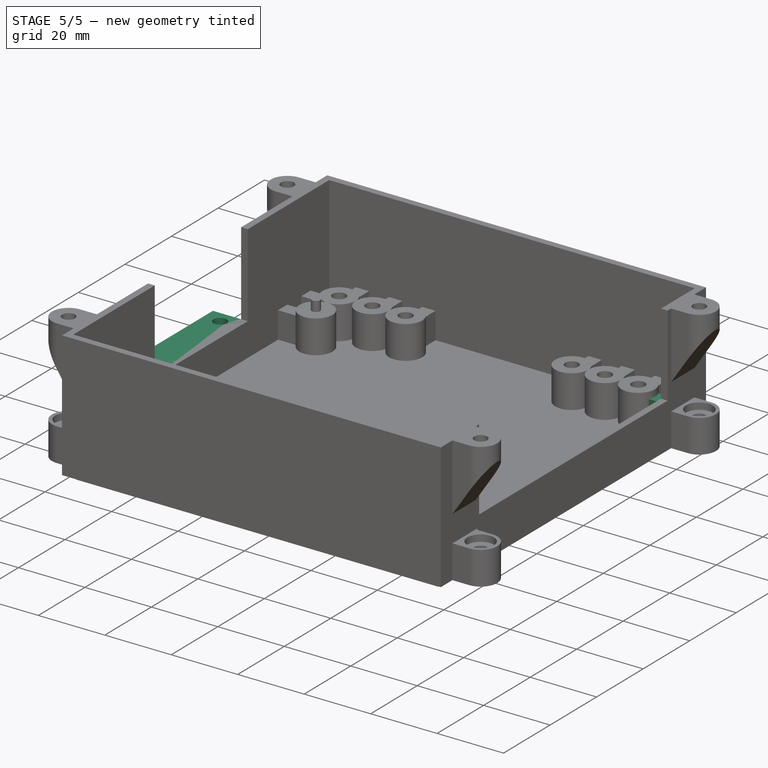
[diagram: stage 5 of 5 — iso view after this stage's code; geometry added in this stage tinted green]
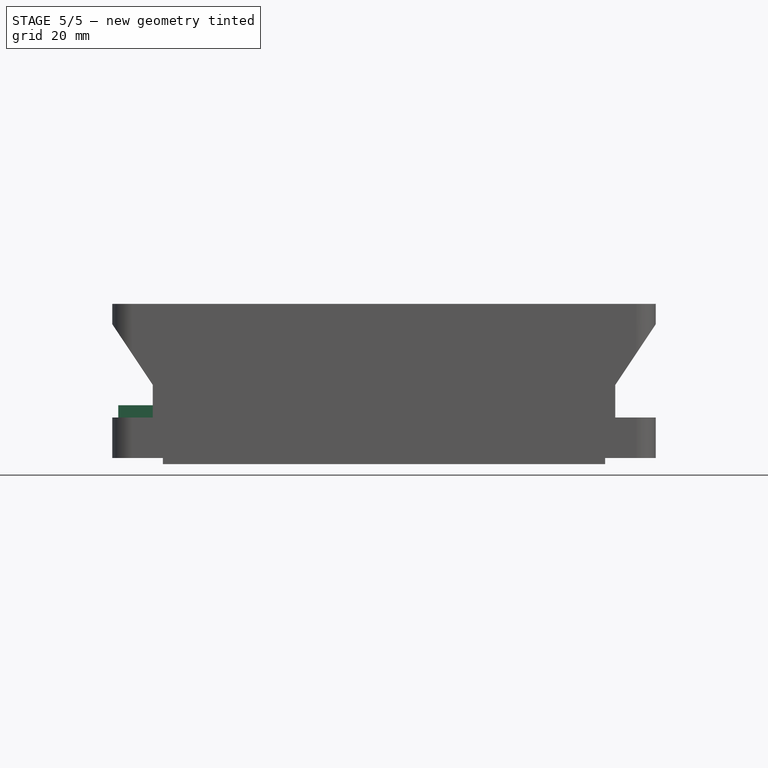
[diagram: stage 5 of 5 — front view after this stage's code; geometry added in this stage tinted green]
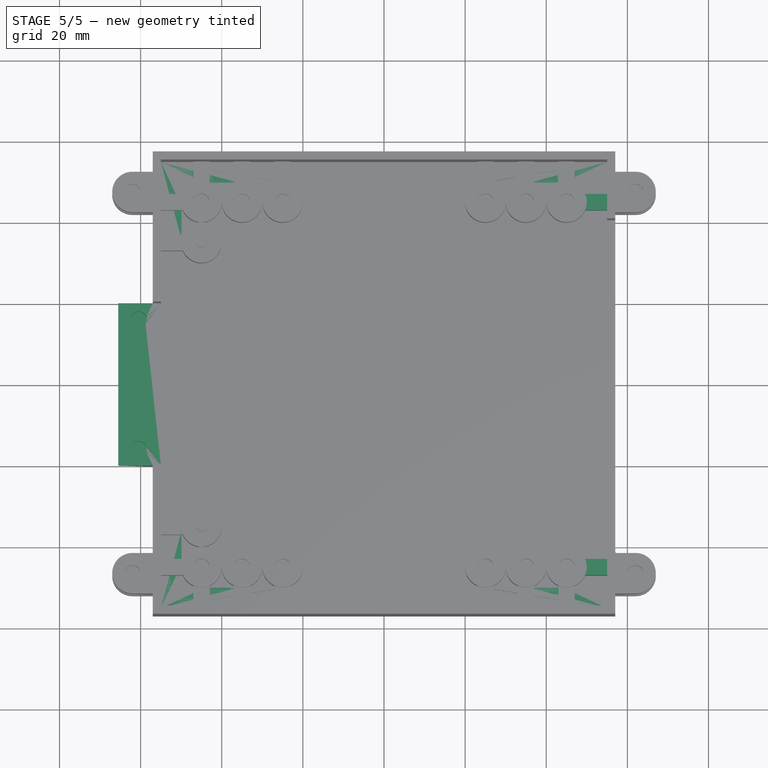
[diagram: stage 5 of 5 — top view after this stage's code; geometry added in this stage tinted green]
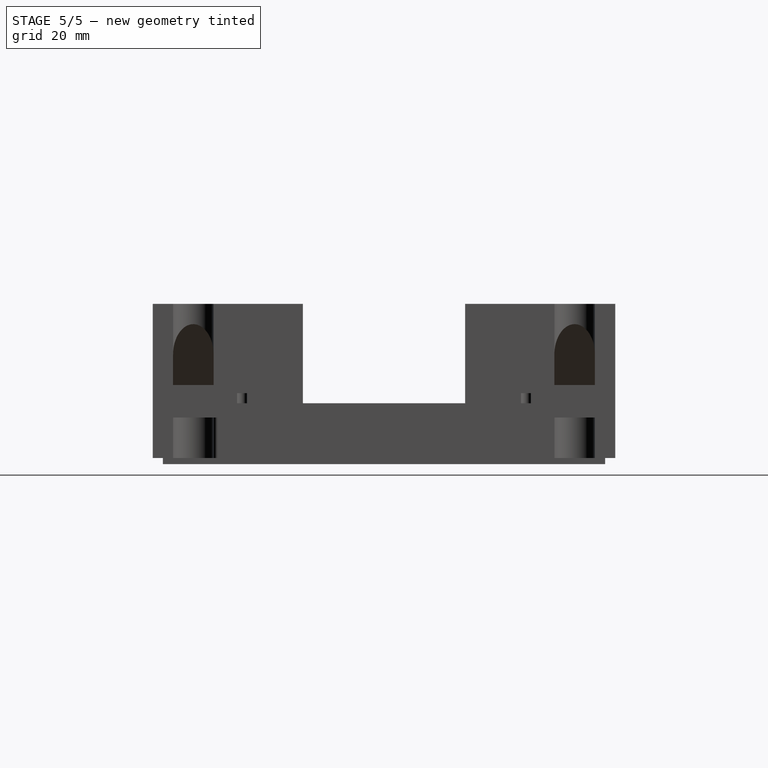
[diagram: stage 5 of 5 — right view after this stage's code; geometry added in this stage tinted green]
FEATURE [PartDesign::Fillet] Fillet
  Base = -> Hole002 [Edge68]
  BaseFeature = -> Hole002
  Radius = 1
  Refine = true
  SupportTransform = false
  Suppressed = false
  UseAllEdges = false
FEATURE [Sketcher::SketchObject] Sketch024
  ArcFitTolerance = 1e-06
  AttachmentSupport = -> [Pad014]
  ExternalGeometry = -> [Pad014]
  FullyConstrained = true
  MakeInternals = false
  MapMode = 5
  Placement = pos=(0,0,3) rot=(0,0,1;0rad)
FEATURE [Sketcher::SketchObject] Sketch025
  ArcFitTolerance = 1e-06
  AttachmentSupport = -> [Pad014]
  ExternalGeometry = -> [Pad014]
  FullyConstrained = false
  MakeInternals = false
  MapMode = 5
  Placement = pos=(0,0,3) rot=(0,0,1;0rad)
  sketch-geometry (15):
    g0: LineSegment [constr] StartX=45 StartY=43 StartZ=0 EndX=55 EndY=43 EndZ=0
    g1: LineSegment [constr] StartX=55 StartY=43 StartZ=0 EndX=55 EndY=47 EndZ=0
    g2: LineSegment [constr] StartX=55 StartY=47 StartZ=0 EndX=45 EndY=47 EndZ=0
    g3: LineSegment [constr] StartX=45 StartY=47 StartZ=0 EndX=45 EndY=43 EndZ=0
    g4: LineSegment StartX=55 StartY=47 StartZ=0 EndX=48.7636 EndY=47 EndZ=0
    g5: LineSegment StartX=48.7636 StartY=47 StartZ=0 EndX=48.7636 EndY=43 EndZ=0
    g6: LineSegment StartX=48.7636 StartY=43 StartZ=0 EndX=55 EndY=43 EndZ=0
    g7: LineSegment StartX=55 StartY=43 StartZ=0 EndX=55 EndY=47 EndZ=0
    g8: LineSegment [constr] StartX=45 StartY=-47 StartZ=0 EndX=55 EndY=-47 EndZ=0
    g9: LineSegment [constr] StartX=55 StartY=-47 StartZ=0 EndX=55 EndY=-43 EndZ=0
    g10: LineSegment [constr] StartX=55 StartY=-43 StartZ=0 EndX=45 EndY=-43 EndZ=0
    g11: LineSegment StartX=55 StartY=-43 StartZ=0 EndX=48.7636 EndY=-43 EndZ=0
    g12: LineSegment StartX=48.7636 StartY=-43 StartZ=0 EndX=48.7636 EndY=-47 EndZ=0
    g13: LineSegment StartX=48.7636 StartY=-47 StartZ=0 EndX=55 EndY=-47 EndZ=0
    g14: LineSegment StartX=55 StartY=-47 StartZ=0 EndX=55 EndY=-43 EndZ=0
  constraints (34):
    c: Coincident(g0,g1)
    c: Coincident(g1,g2)
    c: Coincident(g2,g3)
    c: Coincident(g3,g0)
    c: Horizontal(g0)
    c: Horizontal(g2)
    c: Vertical(g1)
    c: Vertical(g3)
    c: PointOnObject(g0,g-10)
    c: PointOnObject(g1,g-8)
    c: PointOnObject(g-10,g3)
    c: PointOnObject(g2,g-10)
    c: Coincident(g4,g5)
    c: Coincident(g5,g6)
    c: Coincident(g6,g7)
    c: Coincident(g7,g4)
    c: Horizontal(g4)
    c: Horizontal(g6)
    c: Vertical(g5)
    c: Vertical(g7)
    c: DistanceY(g-11,g-10) = 90
    c: Coincident(g8,g9)
    c: Coincident(g9,g10)
    c: Horizontal(g8)
    c: Horizontal(g10)
    c: Vertical(g9)
    c: Coincident(g11,g12)
    c: Coincident(g12,g13)
    c: Coincident(g13,g14)
    c: Coincident(g14,g11)
    c: Horizontal(g11)
    c: Horizontal(g13)
    c: Vertical(g12)
    c: Vertical(g14)
FEATURE [PartDesign::Pad] Pad015
  BaseFeature = -> Pad014
  Direction = (0,0,1)
  Length = 8
  Length2 = 10
  Profile = -> Sketch025
  ReferenceAxis = -> Sketch025 [N_Axis]
  Refine = true
  Suppressed = false
  Type = 0
FEATURE [Sketcher::SketchObject] Sketch026
  ArcFitTolerance = 1e-06
  AttachmentSupport = -> [Pad015]
  ExternalGeometry = -> [Pad015]
  FullyConstrained = true
  MakeInternals = false
  MapMode = 5
  Placement = pos=(-57,0,0) rot=(0.57735,-0.57735,-0.57735;2.0944rad)
  sketch-geometry (4):
    g0: LineSegment StartX=-20 StartY=13 StartZ=0 EndX=-20 EndY=9 EndZ=0
    g1: LineSegment StartX=-20 StartY=9 StartZ=0 EndX=20 EndY=9 EndZ=0
    g2: LineSegment StartX=20 StartY=9 StartZ=0 EndX=20 EndY=13 EndZ=0
    g3: LineSegment StartX=20 StartY=13 StartZ=0 EndX=-20 EndY=13 EndZ=0
  constraints (11):
    c: Coincident(g0,g1)
    c: Coincident(g1,g2)
    c: Coincident(g2,g3)
    c: Coincident(g3,g0)
    c: Vertical(g0)
    c: Vertical(g2)
    c: Horizontal(g1)
    c: Horizontal(g3)
    c: Coincident(g0,g-3)
    c: DistanceX(g3,g3) = 40
    c: DistanceY(g0,g0) = 4
FEATURE [PartDesign::Pad] Pad016
  BaseFeature = -> Pad015
  Direction = (-1,0,0)
  Length = 8.5
  Length2 = 10
  Profile = -> Sketch026
  ReferenceAxis = -> Sketch026 [N_Axis]
  Refine = true
  Suppressed = false
  Type = 0
FEATURE [PartDesign::Chamfer] Chamfer
  Angle = 45
  Base = -> Pad016 [Edge53]
  BaseFeature = -> Pad016
  ChamferType = 0
  FlipDirection = false
  Refine = true
  Size = 8.45
  Size2 = 1
  SupportTransform = false
  Suppressed = false
  UseAllEdges = false
FEATURE [Sketcher::SketchObject] Sketch028
  ArcFitTolerance = 1e-06
  AttachmentSupport = -> [Chamfer]
  ExternalGeometry = -> [Chamfer]
  FullyConstrained = false
  MakeInternals = false
  MapMode = 5
  Placement = pos=(0,0,13) rot=(0,0,1;0rad)
  sketch-geometry (5):
    g0: LineSegment StartX=-60.5 StartY=-20 StartZ=0 EndX=-60.5 EndY=20 EndZ=0
    g1: Circle CenterX=-60.5 CenterY=16 CenterZ=0 NormalX=0 NormalY=0 NormalZ=1 AngleXU=0 Radius=2
    g2: Circle CenterX=-60.5 CenterY=-16 CenterZ=0 NormalX=0 NormalY=0 NormalZ=1 AngleXU=0 Radius=1.34005
    g3: GeomPoint X=-60.5 Y=16 Z=0
    g4: GeomPoint X=-60.5 Y=-16 Z=0
  constraints (12):
    c: PointOnObject(g0,g-6)
    c: PointOnObject(g0,g-4)
    c: Vertical(g0)
    c: Distance(g-5,g-3) = 10.5
    c: Distance(g0,g-3) = 5
    c: PointOnObject(g1,g0)
    c: PointOnObject(g2,g0)
    c: Distance(g1,g-4) = 4
    c: Diameter(g1) = 4
    c: Distance(g2,g-6) = 4
    c: Coincident(g3,g1)
    c: Coincident(g4,g2)
FEATURE [PartDesign::Hole] Hole003
  BaseFeature = -> Chamfer
  CustomThreadClearance = 0
  Depth = 5
  DepthType = 0
  Diameter = 4
  DrillForDepth = false
  DrillPoint = 0
  DrillPointAngle = 118
  HoleCutCountersinkAngle = 90
  HoleCutCustomValues = false
  HoleCutDepth = 0
  HoleCutDiameter = 6.1
  HoleCutType = 0
  ModelThread = false
  Profile = -> Sketch028 [Edge2,Edge3]
  Refine = true
  Suppressed = false
  Tapered = false
  TaperedAngle = 90
  ThreadClass = 0
  ThreadDepth = 5
  ThreadDepthType = 0
  ThreadDirection = 0
  ThreadFit = 0
  ThreadSize = 0
  ThreadType = 0
  Threaded = false
  UseCustomThreadClearance = false
FEATURE [PartDesign::Body] Body  label="Bottom_cover"
  AllowCompound = false
  Group = -> [Sketch,Pad,Sketch001,Pad001,Sketch002,Pocket,Sketch003,Pad002,Sketch004,Pad003,Sketch005,Pad004,Sketch006,Pad005,Sketch007,Pocket001,Sketch008,Pad006,Sketch012,Pad007,Sketch013,Pad008,Pad009,Sketch014,Hole,Sketch016,Hole001,Sketch017,Pad010,Sketch018,Pocket002,Sketch019,Hole002,Fillet,Fillet001,Sketch020,Pad011,Sketch021,Pad012,Sketch022,Pad013,Sketch023,Pad014,Sketch024,Sketch025,Pad015,+5 more]
  Origin = -> Origin
  Tip = -> Hole003
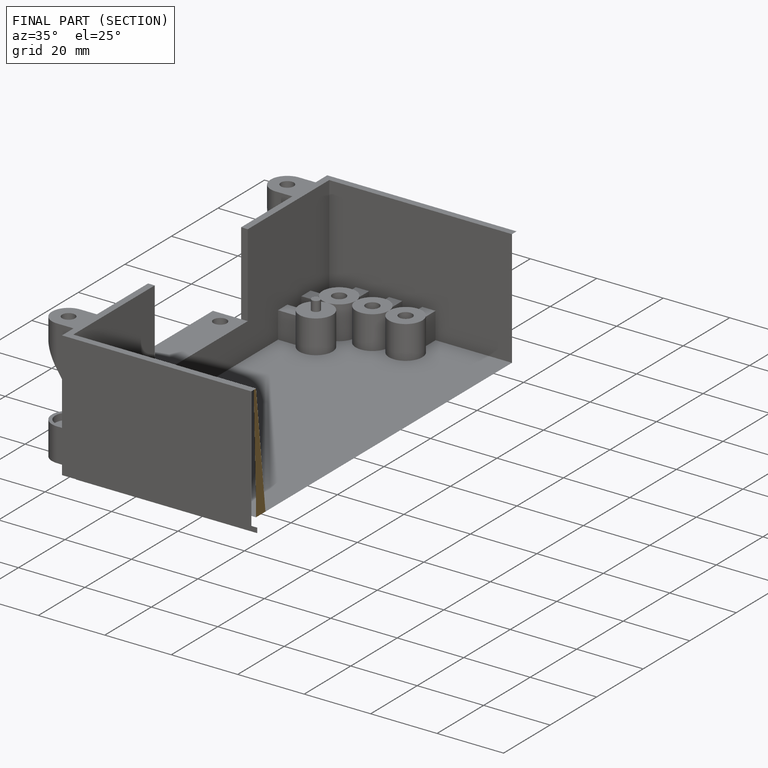
[diagram: finished part — half-section view (interior)]
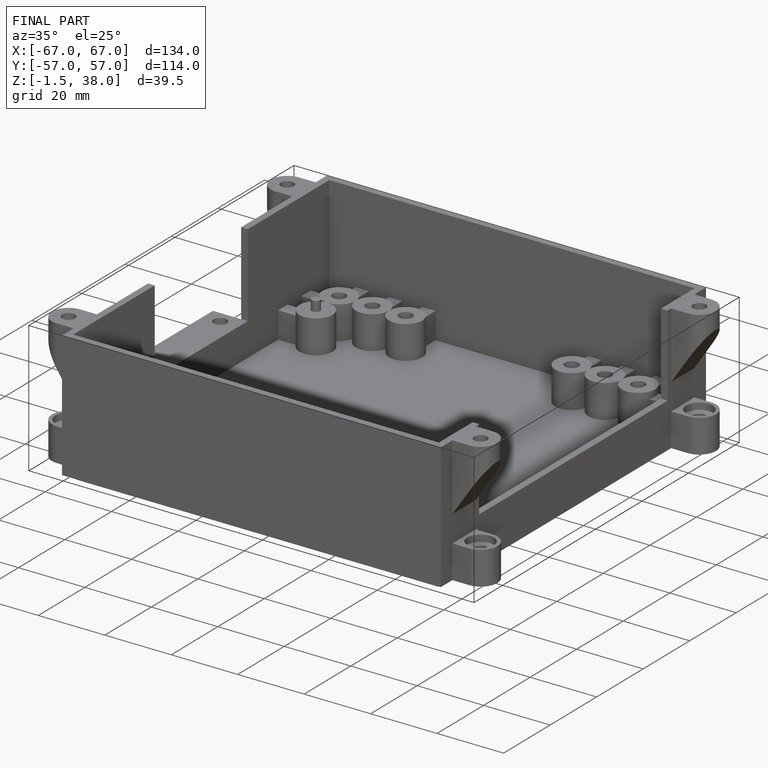
[diagram: finished part — iso view with bounding-box wireframe]
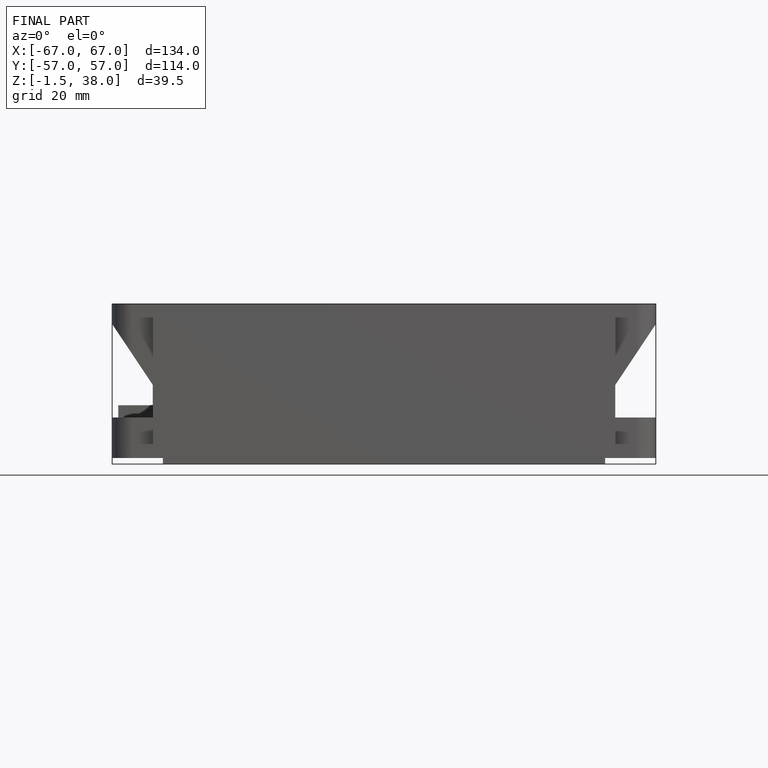
[diagram: finished part — front view with bounding-box wireframe]
